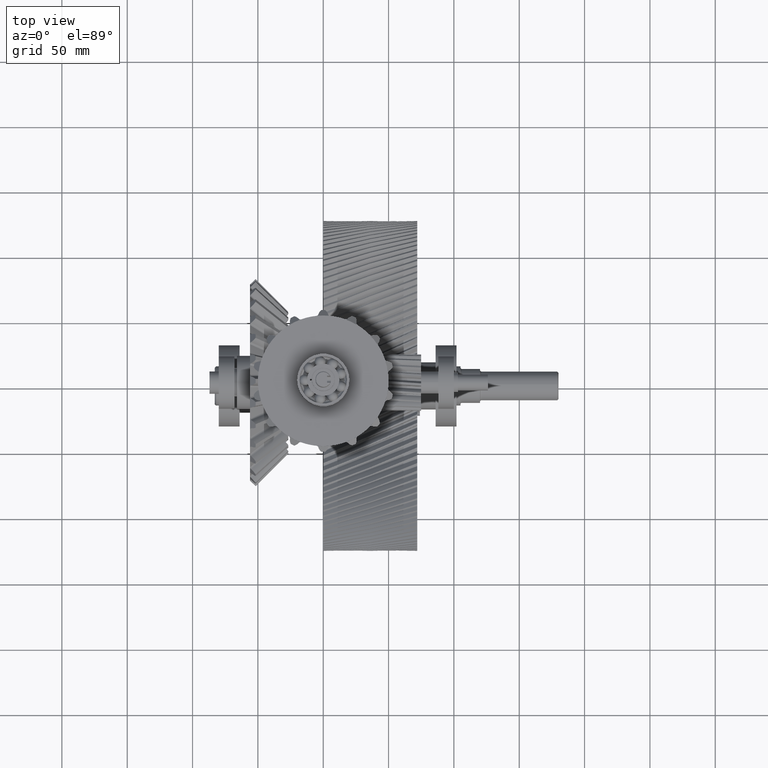
[diagram: clean part render]
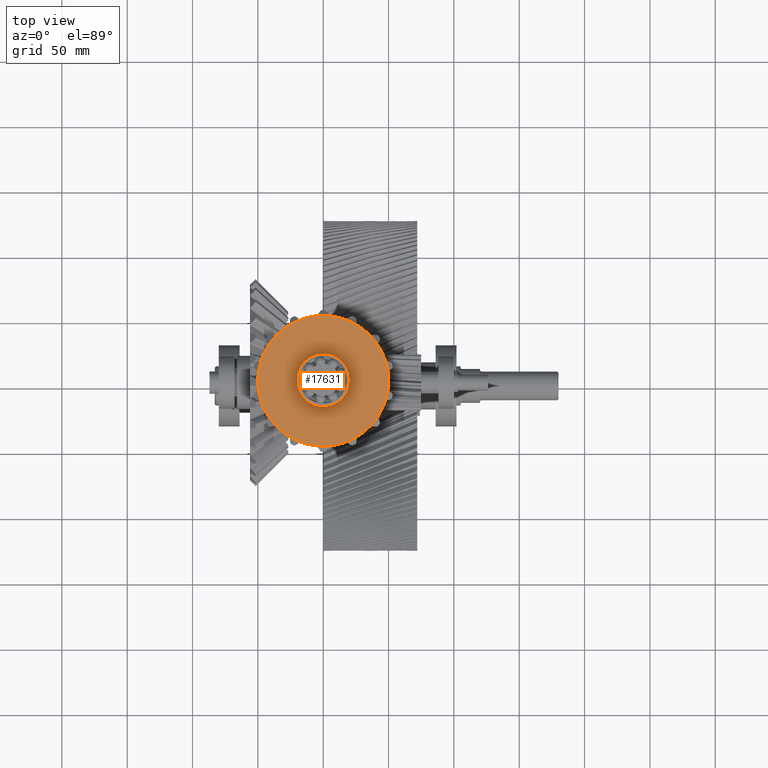
[diagram: same view with one face highlighted and labeled with its STEP entity id]
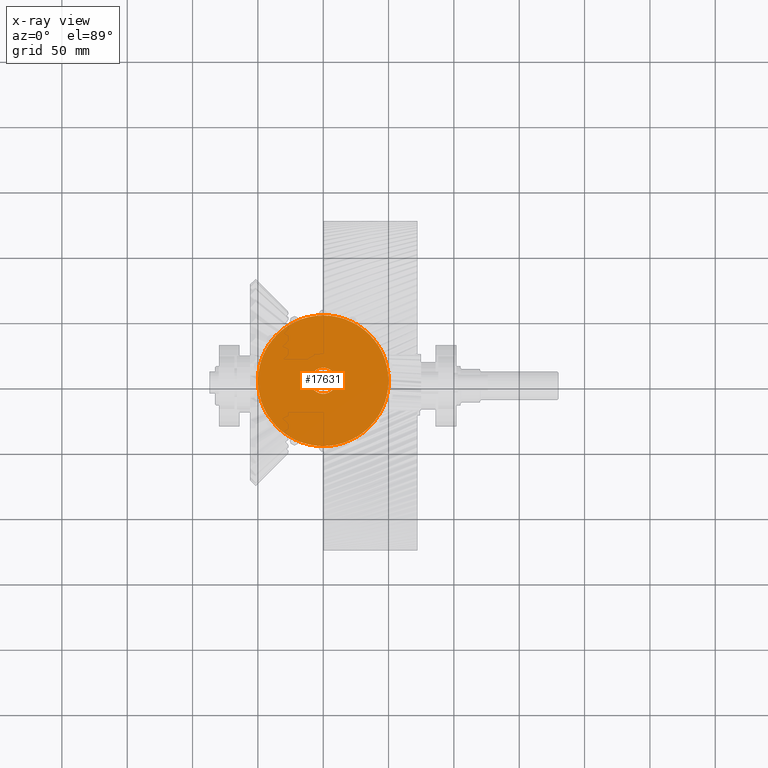
[diagram: x-ray of the same camera — body ghosted, the highlighted face saturated]
A machine part, top view. The second image highlights one B-rep face of the part: STEP entity #17631.
The next image is the same camera in x-ray: the body ghosted, the highlighted face saturated — about 0% of this face is hidden behind the body in this view.
In plain terms, the highlighted planar face has unit normal (0, 0, 1).
Its self-contained STEP definition (entity closure, byte-faithful):
#13673=CARTESIAN_POINT('',(-5.165752647156E0,8.422917568860E-9,
-4.973243411889E1));
#13695=CARTESIAN_POINT('',(-1.692391209906E1,4.552665799955E-9,
-4.704871094260E1));
#13697=CARTESIAN_POINT('',(0.E0,0.E0,0.E0));
#13698=DIRECTION('',(0.E0,-1.E0,0.E0));
#13699=DIRECTION('',(-3.384782445882E-1,0.E0,-9.409742174685E-1));
#13700=AXIS2_PLACEMENT_3D('',#13697,#13698,#13699);
#13702=CARTESIAN_POINT('',(1.692391206198E1,2.811611462120E-9,
-4.704871094657E1));
#13724=CARTESIAN_POINT('',(5.165752528390E0,1.794955789384E-8,
-4.973243417225E1));
#13726=CARTESIAN_POINT('',(3.566158851267E1,2.456199206855E-9,
-3.504641359418E1));
#13753=CARTESIAN_POINT('',(2.623227683151E1,4.545031632446E-9,
-4.256603874247E1));
#13778=CARTESIAN_POINT('',(4.210317678591E1,9.807817755672E-9,
2.696891745842E1));
#13798=CARTESIAN_POINT('',(4.733605002577E1,4.548835962739E-9,
1.610274417775E1));
#13800=CARTESIAN_POINT('',(0.E0,0.E0,0.E0));
#13801=DIRECTION('',(0.E0,-1.E0,0.E0));
#13802=DIRECTION('',(9.467210010592E-1,0.E0,3.220548806546E-1));
#13803=AXIS2_PLACEMENT_3D('',#13800,#13801,#13802);
#13805=CARTESIAN_POINT('',(2.623227684531E1,2.811609559899E-9,
4.256603872545E1));
#13834=CARTESIAN_POINT('',(3.566158851153E1,2.023245681972E-9,
3.504641359345E1));
#13836=CARTESIAN_POINT('',(0.E0,0.E0,0.E0));
#13837=DIRECTION('',(0.E0,-1.E0,0.E0));
#13838=DIRECTION('',(7.132317710003E-1,0.E0,7.009282708208E-1));
#13839=AXIS2_PLACEMENT_3D('',#13836,#13837,#13838);
#13841=CARTESIAN_POINT('',(5.165752506842E0,1.774754681931E-8,
4.973243417607E1));
#13862=CARTESIAN_POINT('',(1.692391209905E1,4.548842709865E-9,
4.704871094259E1));
#13864=CARTESIAN_POINT('',(0.E0,0.E0,0.E0));
#13865=DIRECTION('',(0.E0,-1.E0,0.E0));
#13866=DIRECTION('',(3.384782445875E-1,0.E0,9.409742174688E-1));
#13867=AXIS2_PLACEMENT_3D('',#13864,#13865,#13866);
#13869=CARTESIAN_POINT('',(-1.692391206692E1,2.811617605451E-9,
4.704871094532E1));
#13897=CARTESIAN_POINT('',(-5.165752737781E0,2.156790100107E-9,
4.973243408122E1));
#13899=CARTESIAN_POINT('',(0.E0,0.E0,0.E0));
#13900=DIRECTION('',(0.E0,-1.E0,0.E0));
#13901=DIRECTION('',(-1.033150533674E-1,0.E0,9.946486815694E-1));
#13902=AXIS2_PLACEMENT_3D('',#13899,#13900,#13901);
#13904=CARTESIAN_POINT('',(-3.566158851257E1,2.200562140048E-9,
3.504641359327E1));
#13929=CARTESIAN_POINT('',(-2.623227682315E1,4.548849423150E-9,
4.256603874886E1));
#13931=CARTESIAN_POINT('',(0.E0,0.E0,0.E0));
#13932=DIRECTION('',(0.E0,-1.E0,0.E0));
#13933=DIRECTION('',(-5.246455337568E-1,0.E0,8.513207761526E-1));
#13934=AXIS2_PLACEMENT_3D('',#13931,#13932,#13933);
#13936=CARTESIAN_POINT('',(-4.733605000787E1,2.811623390384E-9,
1.610274420457E1));
#13960=CARTESIAN_POINT('',(-4.210317680364E1,4.548854761808E-9,
2.696891738905E1));
#13962=CARTESIAN_POINT('',(0.E0,0.E0,0.E0));
#13963=DIRECTION('',(0.E0,-1.E0,0.E0));
#13964=DIRECTION('',(-8.420635341447E-1,0.E0,5.393783500139E-1));
#13965=AXIS2_PLACEMENT_3D('',#13962,#13963,#13964);
#13967=CARTESIAN_POINT('',(-4.963502625210E1,2.811622494943E-9,
-6.030271156362E0));
#13991=CARTESIAN_POINT('',(-4.963502625658E1,4.548856333208E-9,
6.030271188264E0));
#13993=CARTESIAN_POINT('',(0.E0,0.E0,0.E0));
#13994=DIRECTION('',(0.E0,-1.E0,0.E0));
#13995=DIRECTION('',(-9.927005243634E-1,0.E0,1.206054266134E-1));
#13996=AXIS2_PLACEMENT_3D('',#13993,#13994,#13995);
#13998=CARTESIAN_POINT('',(-4.210317681344E1,2.811623366033E-9,
-2.696891735835E1));
#14022=CARTESIAN_POINT('',(-4.733605002579E1,4.552669364441E-9,
-1.610274417772E1));
#14024=CARTESIAN_POINT('',(0.E0,0.E0,0.E0));
#14025=DIRECTION('',(0.E0,-1.E0,0.E0));
#14026=DIRECTION('',(-9.467210010597E-1,0.E0,-3.220548806530E-1));
#14027=AXIS2_PLACEMENT_3D('',#14024,#14025,#14026);
#14029=CARTESIAN_POINT('',(-2.623227684531E1,2.811619063584E-9,
-4.256603872545E1));
#14050=CARTESIAN_POINT('',(-3.566158861841E1,9.794304663730E-9,
-3.504641353447E1));
#14052=CARTESIAN_POINT('',(0.E0,0.E0,0.E0));
#14053=DIRECTION('',(0.E0,-1.E0,0.E0));
#14054=DIRECTION('',(-7.132317758778E-1,0.E0,-7.009282658576E-1));
#14055=AXIS2_PLACEMENT_3D('',#14052,#14053,#14054);
#14072=CARTESIAN_POINT('',(-2.510013038976E1,0.E0,-4.306323186821E1));
#14073=CARTESIAN_POINT('',(-2.514236407531E1,0.E0,-4.315792416652E1));
#14074=CARTESIAN_POINT('',(-2.518387253956E1,0.E0,-4.325293330060E1));
#14075=CARTESIAN_POINT('',(-2.522465455750E1,0.E0,-4.334825980566E1));
#14077=CARTESIAN_POINT('',(-2.623227684531E1,2.811619063584E-9,
-4.256603872545E1));
#14078=CARTESIAN_POINT('',(-2.617219142191E1,2.811619052546E-9,
-4.260306771476E1));
#14079=CARTESIAN_POINT('',(-2.605826080639E1,-1.312097433125E-9,
-4.268951249463E1));
#14080=CARTESIAN_POINT('',(-2.590590525075E1,3.748772116767E-10,
-4.286076857023E1));
#14081=CARTESIAN_POINT('',(-2.582164418216E1,0.E0,-4.300129508875E1));
#14082=CARTESIAN_POINT('',(-2.578436664829E1,0.E0,-4.307871666889E1));
#14084=DIRECTION('',(6.234898018587E-1,0.E0,-7.818314824680E-1));
#14085=VECTOR('',#14084,6.212335434591E-1);
#14086=CARTESIAN_POINT('',(-3.664841473818E1,0.E0,-3.423811506059E1));
#14087=LINE('',#14086,#14085);
#14088=CARTESIAN_POINT('',(-3.664841473818E1,0.E0,-3.423811506059E1));
#14089=CARTESIAN_POINT('',(-3.656455312035E1,0.E0,-3.417714339005E1));
#14090=CARTESIAN_POINT('',(-3.648116256586E1,0.E0,-3.411553410841E1));
#14091=CARTESIAN_POINT('',(-3.639824228032E1,0.E0,-3.405328829087E1));
#14093=CARTESIAN_POINT('',(-3.639824228032E1,0.E0,-3.405328829087E1));
#14094=CARTESIAN_POINT('',(-3.688567399369E1,0.E0,-3.360844902493E1));
#14095=CARTESIAN_POINT('',(-3.782174339948E1,-8.908495936982E-10,
-3.268353727827E1));
#14096=CARTESIAN_POINT('',(-3.868114361803E1,1.781687933774E-9,
-3.168915364848E1));
#14097=CARTESIAN_POINT('',(-3.909157388079E1,1.781688009166E-9,
-3.117449040807E1));
#14099=CARTESIAN_POINT('',(-3.909157388079E1,1.781688009166E-9,
-3.117449040807E1));
#14100=CARTESIAN_POINT('',(-3.950218437431E1,1.781688084592E-9,
-3.065960113496E1));
#14101=CARTESIAN_POINT('',(-4.028054766740E1,-8.908482498520E-10,
-2.960022086787E1));
#14102=CARTESIAN_POINT('',(-4.097379197312E1,0.E0,-2.848203842018E1));
#14103=CARTESIAN_POINT('',(-4.129887212293E1,0.E0,-2.790809283868E1));
#14105=CARTESIAN_POINT('',(-4.129887212293E1,0.E0,-2.790809283868E1));
#14106=CARTESIAN_POINT('',(-4.137800880725E1,0.E0,-2.797508314207E1));
#14107=CARTESIAN_POINT('',(-4.145662955964E1,0.E0,-2.804267356638E1));
#14108=CARTESIAN_POINT('',(-4.153473350862E1,0.E0,-2.811086512528E1));
#14110=CARTESIAN_POINT('',(-4.210317681344E1,2.811623366033E-9,
-2.696891735835E1));
#14111=CARTESIAN_POINT('',(-4.206510799388E1,2.811623359040E-9,
-2.702834941310E1));
#14112=CARTESIAN_POINT('',(-4.199996704051E1,-1.312095302306E-9,
-2.715566611001E1));
#14113=CARTESIAN_POINT('',(-4.193700465446E1,3.748808671334E-10,
-2.737606710073E1));
#14114=CARTESIAN_POINT('',(-4.192206022618E1,0.E0,-2.753923662654E1));
#14115=CARTESIAN_POINT('',(-4.192206629338E1,0.E0,-2.762516517572E1));
#14117=DIRECTION('',(2.225209339563E-1,0.E0,-9.749279121818E-1));
#14118=VECTOR('',#14117,6.212335588395E-1);
#14119=CARTESIAN_POINT('',(-4.787444211990E1,0.E0,-1.494632454592E1));
#14120=LINE('',#14119,#14118);
#14121=CARTESIAN_POINT('',(-4.787444211990E1,0.E0,-1.494632454592E1));
#14122=CARTESIAN_POINT('',(-4.777243079664E1,0.E0,-1.492777716125E1));
#14123=CARTESIAN_POINT('',(-4.767056723767E1,0.E0,-1.490845092211E1));
#14124=CARTESIAN_POINT('',(-4.756885119383E1,0.E0,-1.488834714189E1));
#14126=CARTESIAN_POINT('',(-4.756885119383E1,0.E0,-1.488834714189E1));
#14127=CARTESIAN_POINT('',(-4.781500347453E1,0.E0,-1.427607210342E1));
#14128=CARTESIAN_POINT('',(-4.825706871817E1,-8.908485056203E-10,
-1.303661005969E1));
#14129=CARTESIAN_POINT('',(-4.859991465004E1,1.781691597078E-9,
-1.176782165341E1));
#14130=CARTESIAN_POINT('',(-4.874639553132E1,1.781691623986E-9,
-1.112604706519E1));
#14132=CARTESIAN_POINT('',(-4.874639553132E1,1.781691623986E-9,
-1.112604706519E1));
#14133=CARTESIAN_POINT('',(-4.889294070959E1,1.781691650905E-9,
-1.048399068806E1));
#14134=CARTESIAN_POINT('',(-4.913457394222E1,-8.908482373378E-10,
-9.191802834119E0));
#14135=CARTESIAN_POINT('',(-4.927400429405E1,0.E0,-7.883567859924E0));
#14136=CARTESIAN_POINT('',(-4.931786573473E1,0.E0,-7.225413752141E0));
#14138=CARTESIAN_POINT('',(-4.931786573473E1,0.E0,-7.225413752141E0));
#14139=CARTESIAN_POINT('',(-4.941823142693E1,0.E0,-7.251433809463E0));
#14140=CARTESIAN_POINT('',(-4.951839266323E1,0.E0,-7.278218411508E0));
#14141=CARTESIAN_POINT('',(-4.961834909828E1,0.E0,-7.305768849712E0));
#14143=CARTESIAN_POINT('',(-4.963502625210E1,2.811622494943E-9,
-6.030271156362E0));
#14144=CARTESIAN_POINT('',(-4.962651403297E1,2.811622493379E-9,
-6.100335029223E0));
#14145=CARTESIAN_POINT('',(-4.962306470647E1,-1.312092645530E-9,
-6.243307009921E0));
#14146=CARTESIAN_POINT('',(-4.966196596275E1,3.748812703838E-10,
-6.469199796494E0));
#14147=CARTESIAN_POINT('',(-4.971929810208E1,0.E0,-6.622694603859E0));
#14148=CARTESIAN_POINT('',(-4.975658656866E1,0.E0,-6.700110919085E0));
#14150=DIRECTION('',(-2.225209339563E-1,0.E0,-9.749279121818E-1));
#14151=VECTOR('',#14150,6.212335588136E-1);
#14152=CARTESIAN_POINT('',(-4.961834909828E1,0.E0,7.305768849712E0));
#14153=LINE('',#14152,#14151);
#14154=CARTESIAN_POINT('',(-4.961834909828E1,0.E0,7.305768849712E0));
#14155=CARTESIAN_POINT('',(-4.951839266323E1,0.E0,7.278218411508E0));
#14156=CARTESIAN_POINT('',(-4.941823142693E1,0.E0,7.251433809463E0));
#14157=CARTESIAN_POINT('',(-4.931786573473E1,0.E0,7.225413752141E0));
#14159=CARTESIAN_POINT('',(-4.931786573473E1,0.E0,7.225413752141E0));
#14160=CARTESIAN_POINT('',(-4.927398492123E1,0.E0,7.883858554975E0));
#14161=CARTESIAN_POINT('',(-4.913448893123E1,-8.908447508210E-10,
9.192382780296E0));
#14162=CARTESIAN_POINT('',(-4.889287596703E1,1.781684677828E-9,
1.048427425678E1));
#14163=CARTESIAN_POINT('',(-4.874639569609E1,1.781684650921E-9,
1.112604634168E1));
#14165=CARTESIAN_POINT('',(-4.874639569609E1,1.781684650921E-9,
1.112604634168E1));
#14166=CARTESIAN_POINT('',(-4.859985217385E1,1.781684624002E-9,
1.176809546328E1));
#14167=CARTESIAN_POINT('',(-4.825689970275E1,-8.90844427E-10,1.303715021646E1));
#14168=CARTESIAN_POINT('',(-4.781489853806E1,0.E0,1.427633312064E1));
#14169=CARTESIAN_POINT('',(-4.756885119383E1,0.E0,1.488834714189E1));
#14171=CARTESIAN_POINT('',(-4.756885119383E1,0.E0,1.488834714189E1));
#14172=CARTESIAN_POINT('',(-4.767056723767E1,0.E0,1.490845092211E1));
#14173=CARTESIAN_POINT('',(-4.777243079664E1,0.E0,1.492777716125E1));
#14174=CARTESIAN_POINT('',(-4.787444211990E1,0.E0,1.494632454592E1));
#14176=CARTESIAN_POINT('',(-4.733605000787E1,2.811623390384E-9,
1.610274420457E1));
#14177=CARTESIAN_POINT('',(-4.735878033858E1,2.811623394559E-9,
1.603592552289E1));
#14178=CARTESIAN_POINT('',(-4.741770582036E1,-1.312093525975E-9,
1.590561561262E1));
#14179=CARTESIAN_POINT('',(-4.755076584807E1,3.748805696536E-10,
1.571897186696E1));
#14180=CARTESIAN_POINT('',(-4.766901922169E1,0.E0,1.560555330713E1));
#14181=CARTESIAN_POINT('',(-4.773620464953E1,0.E0,1.555198247655E1));
#14183=DIRECTION('',(-6.234898018587E-1,0.E0,-7.818314824680E-1));
#14184=VECTOR('',#14183,6.212335588136E-1);
#14185=CARTESIAN_POINT('',(-4.153473350862E1,0.E0,2.811086512528E1));
#14186=LINE('',#14185,#14184);
#14187=CARTESIAN_POINT('',(-4.153473350862E1,0.E0,2.811086512528E1));
#14188=CARTESIAN_POINT('',(-4.145662955964E1,0.E0,2.804267356638E1));
#14189=CARTESIAN_POINT('',(-4.137800880725E1,0.E0,2.797508314207E1));
#14190=CARTESIAN_POINT('',(-4.129887212293E1,0.E0,2.790809283868E1));
#14192=CARTESIAN_POINT('',(-4.129887212293E1,0.E0,2.790809283868E1));
#14193=CARTESIAN_POINT('',(-4.097364838870E1,0.E0,2.848229192579E1));
#14194=CARTESIAN_POINT('',(-4.028021948872E1,-8.908487437134E-10,
2.960070643425E1));
#14195=CARTESIAN_POINT('',(-3.950200299607E1,1.781689072160E-9,
3.065982854474E1));
#14196=CARTESIAN_POINT('',(-3.909157436754E1,1.781688996768E-9,
3.117448979683E1));
#14198=CARTESIAN_POINT('',(-3.909157436754E1,1.781688996768E-9,
3.117448979683E1));
#14199=CARTESIAN_POINT('',(-3.868096852123E1,1.781688921344E-9,
3.168937324251E1));
#14200=CARTESIAN_POINT('',(-3.782135681959E1,-8.908500875703E-10,
3.268395054169E1));
#14201=CARTESIAN_POINT('',(-3.688546620104E1,0.E0,3.360863866038E1));
#14202=CARTESIAN_POINT('',(-3.639824228032E1,0.E0,3.405328829087E1));
#14204=CARTESIAN_POINT('',(-3.639824228032E1,0.E0,3.405328829087E1));
#14205=CARTESIAN_POINT('',(-3.648116256586E1,0.E0,3.411553410841E1));
#14206=CARTESIAN_POINT('',(-3.656455312035E1,0.E0,3.417714339005E1));
#14207=CARTESIAN_POINT('',(-3.664841473818E1,0.E0,3.423811506059E1));
#14209=CARTESIAN_POINT('',(-3.566158851257E1,2.200562140048E-9,
3.504641359327E1));
#14210=CARTESIAN_POINT('',(-3.571105938232E1,2.200562149136E-9,
3.499607435244E1));
#14211=CARTESIAN_POINT('',(-3.582068874956E1,-1.026934920722E-9,
3.490423598914E1));
#14212=CARTESIAN_POINT('',(-3.602155338488E1,2.934045362865E-10,
3.479380836865E1));
#14213=CARTESIAN_POINT('',(-3.617730646251E1,0.E0,3.474292999440E1));
#14214=CARTESIAN_POINT('',(-3.626108195436E1,0.E0,3.472381500897E1));
#14216=DIRECTION('',(-9.009688679024E-1,0.E0,-4.338837391176E-1));
#14217=VECTOR('',#14216,6.212335588136E-1);
#14218=CARTESIAN_POINT('',(-2.522465455750E1,0.E0,4.334825980566E1));
#14219=LINE('',#14218,#14217);
#14220=CARTESIAN_POINT('',(-2.522465455750E1,0.E0,4.334825980566E1));
#14221=CARTESIAN_POINT('',(-2.518387253956E1,0.E0,4.325293330060E1));
#14222=CARTESIAN_POINT('',(-2.514236407531E1,0.E0,4.315792416652E1));
#14223=CARTESIAN_POINT('',(-2.510013038976E1,0.E0,4.306323186821E1));
#14225=CARTESIAN_POINT('',(-2.510013038976E1,0.E0,4.306323186821E1));
#14226=CARTESIAN_POINT('',(-2.455797822071E1,0.E0,4.343945812318E1));
#14227=CARTESIAN_POINT('',(-2.344795822191E1,-8.908521032303E-10,
4.414624740923E1));
#14228=CARTESIAN_POINT('',(-2.228727383435E1,1.781685645666E-9,
4.476282778860E1));
#14229=CARTESIAN_POINT('',(-2.169418720038E1,1.781685536721E-9,
4.504844327935E1));
#14231=CARTESIAN_POINT('',(-2.169418720038E1,1.781685536721E-9,
4.504844327935E1));
#14232=CARTESIAN_POINT('',(-2.110084476525E1,1.781685427729E-9,
4.533418193637E1));
#14233=CARTESIAN_POINT('',(-1.989483028016E1,-8.908520052794E-10,
4.585729367084E1));
#14234=CARTESIAN_POINT('',(-1.865041498844E1,0.E0,4.628434109847E1));
#14235=CARTESIAN_POINT('',(-1.801851508805E1,0.E0,4.647355805768E1));
#14237=CARTESIAN_POINT('',(-1.801851508805E1,0.E0,4.647355805768E1));
#14238=CARTESIAN_POINT('',(-1.806621623577E1,0.E0,4.656561736497E1));
#14239=CARTESIAN_POINT('',(-1.811461726377E1,0.E0,4.665730721529E1));
#14240=CARTESIAN_POINT('',(-1.816371935425E1,0.E0,4.674862698459E1));
#14242=CARTESIAN_POINT('',(-1.692391206692E1,2.811617605451E-9,
4.704871094532E1));
#14243=CARTESIAN_POINT('',(-1.699032514526E1,2.811617617651E-9,
4.702482146687E1));
#14244=CARTESIAN_POINT('',(-1.712894497255E1,-1.312099381359E-9,
4.698964436352E1));
#14245=CARTESIAN_POINT('',(-1.735783049922E1,3.748763418764E-10,
4.697730441024E1));
#14246=CARTESIAN_POINT('',(-1.752023447249E1,0.E0,4.699904330525E1));
#14247=CARTESIAN_POINT('',(-1.760400726347E1,0.E0,4.701817012135E1));
#14249=DIRECTION('',(-1.E0,0.E0,-2.287522089982E-14));
#14250=VECTOR('',#14249,6.212335512489E-1);
#14251=CARTESIAN_POINT('',(-3.918523411186E0,0.E0,5.E1));
#14252=LINE('',#14251,#14250);
#14253=CARTESIAN_POINT('',(-3.918523411186E0,0.E0,5.E1));
#14254=CARTESIAN_POINT('',(-3.923140703102E0,0.E0,4.989641913223E1));
#14255=CARTESIAN_POINT('',(-3.926965787405E0,0.E0,4.979280901258E1));
#14256=CARTESIAN_POINT('',(-3.93E0,0.E0,4.968916969037E1));
#14258=CARTESIAN_POINT('',(-3.93E0,-1.041750588788E-14,4.968916969037E1));
#14259=CARTESIAN_POINT('',(-3.278296566028E0,-1.053721791278E-14,
4.979290726145E1));
#14260=CARTESIAN_POINT('',(-1.971536084719E0,-8.908569496968E-10,
4.994808276417E1));
#14261=CARTESIAN_POINT('',(-6.582739601973E-1,1.781683251467E-9,
4.999999998646E1));
#14262=CARTESIAN_POINT('',(-3.636412846703E-7,1.781683130548E-9,
5.000000000546E1));
#14264=CARTESIAN_POINT('',(-3.636412846703E-7,1.781683130548E-9,
5.000000000546E1));
#14265=CARTESIAN_POINT('',(6.585527293651E-1,1.781683009577E-9,
5.000000000546E1));
#14266=CARTESIAN_POINT('',(1.972096181035E0,-8.908593396146E-10,
4.994803850903E1));
#14267=CARTESIAN_POINT('',(3.278572342428E0,0.E0,4.979286336360E1));
#14268=CARTESIAN_POINT('',(3.93E0,0.E0,4.968916969037E1));
#14270=CARTESIAN_POINT('',(3.93E0,-1.253018487396E-14,4.968916969037E1));
#14271=CARTESIAN_POINT('',(3.926965787405E0,-1.252962751656E-14,
4.979280901258E1));
#14272=CARTESIAN_POINT('',(3.923140703102E0,-1.252892488318E-14,
4.989641913223E1));
#14273=CARTESIAN_POINT('',(3.918523411186E0,-1.252807672842E-14,5.E1));
#14275=CARTESIAN_POINT('',(5.165752506842E0,1.774754681931E-8,
4.973243417607E1));
#14276=CARTESIAN_POINT('',(5.095551486289E0,1.774754683220E-8,
4.973972601181E1));
#14277=CARTESIAN_POINT('',(4.955396429634E0,-8.282205616601E-9,
4.976817757848E1));
#14278=CARTESIAN_POINT('',(4.743823666682E0,2.366329999629E-9,
4.985636923214E1));
#14279=CARTESIAN_POINT('',(4.606934883175E0,-1.237365298996E-14,
4.994641970790E1));
#14280=CARTESIAN_POINT('',(4.539757021448E0,-1.236131302451E-14,5.E1));
#14282=DIRECTION('',(-9.009688679024E-1,0.E0,4.338837391176E-1));
#14283=VECTOR('',#14282,6.212335588136E-1);
#14284=CARTESIAN_POINT('',(1.816371935425E1,-1.198578285849E-14,
4.674862698459E1));
#14285=LINE('',#14284,#14283);
#14286=CARTESIAN_POINT('',(1.816371935425E1,-1.970386145427E-14,
4.674862698459E1));
#14287=CARTESIAN_POINT('',(1.811461726377E1,-1.969484184447E-14,
4.665730721529E1));
#14288=CARTESIAN_POINT('',(1.806621623577E1,-1.968595101351E-14,
4.656561736497E1));
#14289=CARTESIAN_POINT('',(1.801851508805E1,-1.967718874422E-14,
4.647355805768E1));
#14291=CARTESIAN_POINT('',(1.801851508805E1,-1.531413411837E-14,
4.647355805768E1));
#14292=CARTESIAN_POINT('',(1.865068975515E1,-1.543025888547E-14,
4.628425882196E1));
#14293=CARTESIAN_POINT('',(1.989536839571E1,-8.908594919971E-10,
4.585708498385E1));
#14294=CARTESIAN_POINT('',(2.110110273323E1,1.781677170446E-9,
4.533405769095E1));
#14295=CARTESIAN_POINT('',(2.169418658193E1,1.781677061502E-9,
4.504844358368E1));
#14297=CARTESIAN_POINT('',(2.169418658193E1,1.781677061502E-9,
4.504844358368E1));
#14298=CARTESIAN_POINT('',(2.228752148478E1,1.781676952511E-9,
4.476270855401E1));
#14299=CARTESIAN_POINT('',(2.344843694342E1,-8.908617625111E-10,
4.414596842553E1));
#14300=CARTESIAN_POINT('',(2.455820443905E1,-1.327972099281E-14,
4.343930113907E1));
#14301=CARTESIAN_POINT('',(2.510013038976E1,-1.337926788719E-14,
4.306323186821E1));
#14303=CARTESIAN_POINT('',(2.510013038976E1,-1.949778149940E-14,
4.306323186821E1));
#14304=CARTESIAN_POINT('',(2.514236407531E1,-1.950553944535E-14,
4.315792416652E1));
#14305=CARTESIAN_POINT('',(2.518387253956E1,-1.951316417471E-14,
4.325293330060E1));
#14306=CARTESIAN_POINT('',(2.522465455750E1,-1.952065546246E-14,
4.334825980566E1));
#14308=CARTESIAN_POINT('',(2.623227684531E1,2.811609559899E-9,
4.256603872545E1));
#14309=CARTESIAN_POINT('',(2.617219142191E1,2.811609570936E-9,
4.260306771476E1));
#14310=CARTESIAN_POINT('',(2.605826080639E1,-1.312107157625E-9,
4.268951249463E1));
#14311=CARTESIAN_POINT('',(2.590590525075E1,3.748680230327E-10,
4.286076857023E1));
#14312=CARTESIAN_POINT('',(2.582164418216E1,-1.561912472015E-14,
4.300129508875E1));
#14313=CARTESIAN_POINT('',(2.578436664829E1,-1.561227717443E-14,
4.307871666889E1));
#14315=DIRECTION('',(-6.234898018587E-1,0.E0,7.818314824680E-1));
#14316=VECTOR('',#14315,6.212335506324E-1);
#14317=CARTESIAN_POINT('',(3.664841473818E1,-1.677123228089E-14,
3.423811506059E1));
#14318=LINE('',#14317,#14316);
#14319=CARTESIAN_POINT('',(3.664841473818E1,-1.672802252751E-14,
3.423811506059E1));
#14320=CARTESIAN_POINT('',(3.656455312035E1,-1.671261790700E-14,
3.417714339005E1));
#14321=CARTESIAN_POINT('',(3.648116256586E1,-1.669729981657E-14,
3.411553410841E1));
#14322=CARTESIAN_POINT('',(3.639824228032E1,-1.668206811029E-14,
3.405328829087E1));
#14324=CARTESIAN_POINT('',(3.639824228032E1,-1.762376854636E-14,
3.405328829087E1));
#14325=CARTESIAN_POINT('',(3.688567818780E1,-1.771330611277E-14,
3.360844519731E1));
#14326=CARTESIAN_POINT('',(3.782175139233E1,-8.908626044894E-10,
3.268352873490E1));
#14327=CARTESIAN_POINT('',(3.868114712694E1,1.781672513752E-9,
3.168914924040E1));
#14328=CARTESIAN_POINT('',(3.909157395613E1,1.781672438360E-9,
3.117449030554E1));
#14330=CARTESIAN_POINT('',(3.909157395613E1,1.781672438360E-9,
3.117449030554E1));
#14331=CARTESIAN_POINT('',(3.950217426395E1,1.781672362936E-9,
3.065961380491E1));
#14332=CARTESIAN_POINT('',(4.028052960712E1,-8.908621719740E-10,
2.960024759850E1));
#14333=CARTESIAN_POINT('',(4.097378400564E1,-2.023259570828E-14,
2.848205248716E1));
#14334=CARTESIAN_POINT('',(4.129887212293E1,-2.029231145437E-14,
2.790809283868E1));
#14336=CARTESIAN_POINT('',(4.129887212293E1,-1.901646859299E-14,
2.790809283868E1));
#14337=CARTESIAN_POINT('',(4.137800880725E1,-1.903100528596E-14,
2.797508314207E1));
#14338=CARTESIAN_POINT('',(4.145662955964E1,-1.904544720689E-14,
2.804267356638E1));
#14339=CARTESIAN_POINT('',(4.153473350862E1,-1.905979419572E-14,
2.811086512528E1));
#14341=CARTESIAN_POINT('',(4.210317678591E1,9.807817755672E-9,
2.696891745842E1));
#14342=CARTESIAN_POINT('',(4.206510803689E1,9.807817762665E-9,
2.702834939249E1));
#14343=CARTESIAN_POINT('',(4.199996709147E1,-4.577008486940E-9,
2.715566619174E1));
#14344=CARTESIAN_POINT('',(4.193700466539E1,1.307692814981E-9,
2.737606711153E1));
#14345=CARTESIAN_POINT('',(4.192206022313E1,-1.769498454581E-14,
2.753923663788E1));
#14346=CARTESIAN_POINT('',(4.192206628764E1,-1.769498565981E-14,
2.762516518291E1));
#14348=DIRECTION('',(-2.225209339563E-1,0.E0,9.749279121818E-1));
#14349=VECTOR('',#14348,6.212335588136E-1);
#14350=CARTESIAN_POINT('',(4.787444211990E1,-1.909818194651E-14,
1.494632454592E1));
#14351=LINE('',#14350,#14349);
#14352=CARTESIAN_POINT('',(4.787444211990E1,-1.750999983854E-14,
1.494632454592E1));
#14353=CARTESIAN_POINT('',(4.777243079664E1,-1.749126128134E-14,
1.492777716125E1));
#14354=CARTESIAN_POINT('',(4.767056723767E1,-1.747254986711E-14,
1.490845092211E1));
#14355=CARTESIAN_POINT('',(4.756885119383E1,-1.745386555007E-14,
1.488834714189E1));
#14357=CARTESIAN_POINT('',(4.756885119383E1,-1.949198637187E-14,
1.488834714189E1));
#14358=CARTESIAN_POINT('',(4.781500558681E1,-1.953720270692E-14,
1.427606684937E1));
#14359=CARTESIAN_POINT('',(4.825707218908E1,-8.908658121582E-10,
1.303659896926E1));
#14360=CARTESIAN_POINT('',(4.859991589800E1,1.781673089631E-9,
1.176781616713E1));
#14361=CARTESIAN_POINT('',(4.874639555063E1,1.781673062724E-9,
1.112604696194E1));
#14363=CARTESIAN_POINT('',(4.874639555063E1,1.781673062724E-9,
1.112604696194E1));
#14364=CARTESIAN_POINT('',(4.889293710385E1,1.781673035806E-9,
1.048400646722E1));
#14365=CARTESIAN_POINT('',(4.913456926548E1,-8.908654883202E-10,
9.191834768874E0));
#14366=CARTESIAN_POINT('',(4.927400322011E1,-2.077525983367E-14,
7.883583974729E0));
#14367=CARTESIAN_POINT('',(4.931786573473E1,-2.078331698079E-14,
7.225413752141E0));
#14369=CARTESIAN_POINT('',(4.931786573473E1,-1.828700343636E-14,
7.225413752141E0));
#14370=CARTESIAN_POINT('',(4.941823142693E1,-1.830543970601E-14,
7.251433809463E0));
#14371=CARTESIAN_POINT('',(4.951839266323E1,-1.832383841897E-14,
7.278218411508E0));
#14372=CARTESIAN_POINT('',(4.961834909828E1,-1.834219951179E-14,
7.305768849712E0));
#14374=CARTESIAN_POINT('',(4.963502625210E1,2.811604056123E-9,
6.030271156366E0));
#14375=CARTESIAN_POINT('',(4.962651403297E1,2.811604057687E-9,
6.100335029221E0));
#14376=CARTESIAN_POINT('',(4.962306470647E1,-1.312110738247E-9,
6.243307009922E0));
#14377=CARTESIAN_POINT('',(4.966196596275E1,3.748628485436E-10,
6.469199796494E0));
#14378=CARTESIAN_POINT('',(4.971929810208E1,-1.861591746114E-14,
6.622694603859E0));
#14379=CARTESIAN_POINT('',(4.975658656866E1,-1.862276701511E-14,
6.700110919085E0));
#14381=DIRECTION('',(2.225209339563E-1,0.E0,9.749279121818E-1));
#14382=VECTOR('',#14381,6.212335587878E-1);
#14383=CARTESIAN_POINT('',(4.961834909828E1,-2.045143163693E-14,
-7.305768849712E0));
#14384=LINE('',#14383,#14382);
#14385=CARTESIAN_POINT('',(4.961834909828E1,-2.189491319059E-14,
-7.305768849712E0));
#14386=CARTESIAN_POINT('',(4.951839266323E1,-2.187655209777E-14,
-7.278218411508E0));
#14387=CARTESIAN_POINT('',(4.941823142693E1,-2.185815338481E-14,
-7.251433809463E0));
#14388=CARTESIAN_POINT('',(4.931786573473E1,-2.183971711516E-14,
-7.225413752141E0));
#14390=CARTESIAN_POINT('',(4.931786573473E1,-1.959907908785E-14,
-7.225413752141E0));
#14391=CARTESIAN_POINT('',(4.927398454413E1,-1.959101851013E-14,
-7.883864213545E0));
#14392=CARTESIAN_POINT('',(4.913448724673E1,-8.908642676342E-10,
-9.192394276167E0));
#14393=CARTESIAN_POINT('',(4.889287470879E1,1.781669410237E-9,
-1.048427975245E1));
#14394=CARTESIAN_POINT('',(4.874639567102E1,1.781669437144E-9,
-1.112604643448E1));
#14396=CARTESIAN_POINT('',(4.874639567102E1,1.781669437144E-9,
-1.112604643448E1));
#14397=CARTESIAN_POINT('',(4.859985578034E1,1.781669464062E-9,
-1.176807964519E1));
#14398=CARTESIAN_POINT('',(4.825690937530E1,-8.908639993384E-10,
-1.303711931761E1));
#14399=CARTESIAN_POINT('',(4.781490457777E1,-1.953718415247E-14,
-1.427631809756E1));
#14400=CARTESIAN_POINT('',(4.756885119383E1,-1.949198637187E-14,
-1.488834714189E1));
#14402=CARTESIAN_POINT('',(4.756885119383E1,-2.100657922888E-14,
-1.488834714189E1));
#14403=CARTESIAN_POINT('',(4.767056723767E1,-2.102526354591E-14,
-1.490845092211E1));
#14404=CARTESIAN_POINT('',(4.777243079664E1,-2.104397496014E-14,
-1.492777716125E1));
#14405=CARTESIAN_POINT('',(4.787444211990E1,-2.106271351734E-14,
-1.494632454592E1));
#14407=CARTESIAN_POINT('',(4.733605000576E1,2.811605159083E-9,
-1.610274420921E1));
#14408=CARTESIAN_POINT('',(4.735878033891E1,2.811605154908E-9,
-1.603592552033E1));
#14409=CARTESIAN_POINT('',(4.741770582020E1,-1.312110881145E-9,
-1.590561561382E1));
#14410=CARTESIAN_POINT('',(4.755076584811E1,3.748641333705E-10,
-1.571897186662E1));
#14411=CARTESIAN_POINT('',(4.766901922169E1,-1.996700834919E-14,
-1.560555330713E1));
#14412=CARTESIAN_POINT('',(4.773620464953E1,-1.997934970446E-14,
-1.555198247655E1));
#14414=CARTESIAN_POINT('',(0.E0,0.E0,0.E0));
#14415=DIRECTION('',(0.E0,-1.E0,0.E0));
#14416=DIRECTION('',(8.420635320731E-1,0.E0,-5.393783532481E-1));
#14417=AXIS2_PLACEMENT_3D('',#14414,#14415,#14416);
#14419=DIRECTION('',(6.234898018587E-1,0.E0,7.818314824680E-1));
#14420=VECTOR('',#14419,6.212335462663E-1);
#14421=CARTESIAN_POINT('',(4.153473350862E1,-1.691064851401E-14,
-2.811086512528E1));
#14422=LINE('',#14421,#14420);
#14423=CARTESIAN_POINT('',(4.153473350862E1,-2.261250787452E-14,
-2.811086512528E1));
#14424=CARTESIAN_POINT('',(4.145662955964E1,-2.259816088569E-14,
-2.804267356638E1));
#14425=CARTESIAN_POINT('',(4.137800880725E1,-2.258371896476E-14,
-2.797508314207E1));
#14426=CARTESIAN_POINT('',(4.129887212293E1,-2.256918227179E-14,
-2.790809283868E1));
#14428=CARTESIAN_POINT('',(4.129887212293E1,-1.910807356144E-14,
-2.790809283868E1));
#14429=CARTESIAN_POINT('',(4.097364564262E1,-1.904833239931E-14,
-2.848229677413E1));
#14430=CARTESIAN_POINT('',(4.028021327112E1,-8.908639762094E-10,
-2.960071563314E1));
#14431=CARTESIAN_POINT('',(3.950199951249E1,1.781674787318E-9,
-3.065983291627E1));
#14432=CARTESIAN_POINT('',(3.909157440122E1,1.781674862709E-9,
-3.117448975785E1));
#14434=CARTESIAN_POINT('',(3.909157440122E1,1.781674862709E-9,
-3.117448975785E1));
#14435=CARTESIAN_POINT('',(3.868097854636E1,1.781674938132E-9,
-3.168936067465E1));
#14436=CARTESIAN_POINT('',(3.782137902061E1,-8.908638165956E-10,
-3.268392680710E1));
#14437=CARTESIAN_POINT('',(3.688547808871E1,-1.771326935637E-14,
-3.360862781147E1));
#14438=CARTESIAN_POINT('',(3.639824228032E1,-1.762376854636E-14,
-3.405328829087E1));
#14440=CARTESIAN_POINT('',(3.639824228032E1,-2.023478178909E-14,
-3.405328829087E1));
#14441=CARTESIAN_POINT('',(3.648116256586E1,-2.025001349537E-14,
-3.411553410841E1));
#14442=CARTESIAN_POINT('',(3.656455312035E1,-2.026533158580E-14,
-3.417714339005E1));
#14443=CARTESIAN_POINT('',(3.664841473818E1,-2.028073620631E-14,
-3.423811506059E1));
#14445=CARTESIAN_POINT('',(3.566158851267E1,2.456199206855E-9,
-3.504641359418E1));
#14446=CARTESIAN_POINT('',(3.571105938297E1,2.456199197768E-9,
-3.499607435259E1));
#14447=CARTESIAN_POINT('',(3.582068875200E1,-1.146251264943E-9,
-3.490423599171E1));
#14448=CARTESIAN_POINT('',(3.602155338529E1,3.274771954931E-10,
-3.479380836946E1));
#14449=CARTESIAN_POINT('',(3.617730646252E1,-1.505009915360E-14,
-3.474292999492E1));
#14450=CARTESIAN_POINT('',(3.626108195410E1,-1.506548795350E-14,
-3.472381500930E1));
#14452=CARTESIAN_POINT('',(0.E0,0.E0,0.E0));
#14453=DIRECTION('',(0.E0,-1.E0,0.E0));
#14454=DIRECTION('',(5.246455342913E-1,0.E0,-8.513207758232E-1));
#14455=AXIS2_PLACEMENT_3D('',#14452,#14453,#14454);
#14457=DIRECTION('',(9.009688679024E-1,0.E0,4.338837391176E-1));
#14458=VECTOR('',#14457,6.212335587878E-1);
#14459=CARTESIAN_POINT('',(2.522465455750E1,-1.434379008439E-14,
-4.334825980566E1));
#14460=LINE('',#14459,#14458);
#14461=CARTESIAN_POINT('',(2.522465455750E1,-1.596794178366E-14,
-4.334825980566E1));
#14462=CARTESIAN_POINT('',(2.518387253956E1,-1.596045049591E-14,
-4.325293330060E1));
#14463=CARTESIAN_POINT('',(2.514236407531E1,-1.595282576655E-14,
-4.315792416652E1));
#14464=CARTESIAN_POINT('',(2.510013038976E1,-1.594506782060E-14,
-4.306323186821E1));
#14466=CARTESIAN_POINT('',(2.510013038976E1,-1.456350578012E-14,
-4.306323186821E1));
#14467=CARTESIAN_POINT('',(2.455797359014E1,-1.446391648088E-14,
-4.343946133657E1));
#14468=CARTESIAN_POINT('',(2.344794842185E1,-8.908576941235E-10,
-4.414625312039E1));
#14469=CARTESIAN_POINT('',(2.228726875624E1,1.781670000200E-9,
-4.476283023409E1));
#14470=CARTESIAN_POINT('',(2.169418720038E1,1.781670109144E-9,
-4.504844327935E1));
#14472=CARTESIAN_POINT('',(2.169418720038E1,1.781670109144E-9,
-4.504844327935E1));
#14473=CARTESIAN_POINT('',(2.110085937311E1,1.781670218133E-9,
-4.533417490160E1));
#14474=CARTESIAN_POINT('',(1.989486070201E1,-8.908560157249E-10,
-4.585728187412E1));
#14475=CARTESIAN_POINT('',(1.865043052063E1,-1.543021126644E-14,
-4.628433644749E1));
#14476=CARTESIAN_POINT('',(1.801851508805E1,-1.531413411837E-14,
-4.647355805768E1));
#14478=CARTESIAN_POINT('',(1.801851508805E1,-1.967718874422E-14,
-4.647355805768E1));
#14479=CARTESIAN_POINT('',(1.806621623577E1,-1.968595101351E-14,
-4.656561736497E1));
#14480=CARTESIAN_POINT('',(1.811461726377E1,-1.969484184447E-14,
-4.665730721529E1));
#14481=CARTESIAN_POINT('',(1.816371935425E1,-1.970386145427E-14,
-4.674862698459E1));
#14483=CARTESIAN_POINT('',(1.692391206198E1,2.811611462120E-9,
-4.704871094657E1));
#14484=CARTESIAN_POINT('',(1.699032514747E1,2.811611449921E-9,
-4.702482146554E1));
#14485=CARTESIAN_POINT('',(1.712894497152E1,-1.312105624596E-9,
-4.698964436414E1));
#14486=CARTESIAN_POINT('',(1.735783049952E1,3.748696799165E-10,
-4.697730441006E1));
#14487=CARTESIAN_POINT('',(1.752023447249E1,-1.422501354186E-14,
-4.699904330525E1));
#14488=CARTESIAN_POINT('',(1.760400726347E1,-1.424040184568E-14,
-4.701817012135E1));
#14490=CARTESIAN_POINT('',(0.E0,0.E0,0.E0));
#14491=DIRECTION('',(0.E0,-1.E0,0.E0));
#14492=DIRECTION('',(1.033150404905E-1,0.E0,-9.946486829069E-1));
#14493=AXIS2_PLACEMENT_3D('',#14490,#14491,#14492);
#14495=DIRECTION('',(1.E0,0.E0,0.E0));
#14496=VECTOR('',#14495,6.212336095479E-1);
#14497=CARTESIAN_POINT('',(3.918523411186E0,-1.017588048460E-14,-5.E1));
#14498=LINE('',#14497,#14496);
#14499=CARTESIAN_POINT('',(3.918523411186E0,-1.252807672842E-14,-5.E1));
#14500=CARTESIAN_POINT('',(3.923140703102E0,-1.252892488318E-14,
-4.989641913223E1));
#14501=CARTESIAN_POINT('',(3.926965787405E0,-1.252962751656E-14,
-4.979280901258E1));
#14502=CARTESIAN_POINT('',(3.93E0,-1.253018487396E-14,-4.968916969037E1));
#14504=CARTESIAN_POINT('',(3.93E0,-1.138004648198E-14,-4.968916969037E1));
#14505=CARTESIAN_POINT('',(2.628194847748E0,-1.114091665285E-14,
-4.989638987285E1));
#14506=CARTESIAN_POINT('',(1.318194999125E0,-1.090028153213E-14,
-4.999999997605E1));
#14507=CARTESIAN_POINT('',(4.541302176531E-7,-1.065814111982E-14,-5.E1));
#14509=CARTESIAN_POINT('',(4.541302177238E-7,-1.065814111982E-14,-5.E1));
#14510=CARTESIAN_POINT('',(-1.318194395512E0,-1.041600065155E-14,
-5.000000002395E1));
#14511=CARTESIAN_POINT('',(-2.628194546889E0,-1.017536547522E-14,
-4.989638992074E1));
#14512=CARTESIAN_POINT('',(-3.93E0,0.E0,-4.968916969037E1));
#14514=CARTESIAN_POINT('',(-3.93E0,0.E0,-4.968916969037E1));
#14515=CARTESIAN_POINT('',(-3.926965787405E0,0.E0,-4.979280901258E1));
#14516=CARTESIAN_POINT('',(-3.923140703102E0,0.E0,-4.989641913223E1));
#14517=CARTESIAN_POINT('',(-3.918523411186E0,0.E0,-5.E1));
#14519=CARTESIAN_POINT('',(-5.165752647156E0,8.422917568860E-9,
-4.973243411889E1));
#14520=CARTESIAN_POINT('',(-5.095551404473E0,8.422917555965E-9,
-4.973972598126E1));
#14521=CARTESIAN_POINT('',(-4.955396430544E0,-3.930709181389E-9,
-4.976817745248E1));
#14522=CARTESIAN_POINT('',(-4.743823619659E0,1.123047313389E-9,
-4.985636919300E1));
#14523=CARTESIAN_POINT('',(-4.606934843657E0,-1.008985954646E-14,
-4.994641969121E1));
#14524=CARTESIAN_POINT('',(-4.539756981793E0,-1.010219951193E-14,-5.E1));
#14526=DIRECTION('',(9.009688679024E-1,0.E0,-4.338837391176E-1));
#14527=VECTOR('',#14526,6.212335588395E-1);
#14528=CARTESIAN_POINT('',(-1.816371935425E1,0.E0,-4.674862698459E1));
#14529=LINE('',#14528,#14527);
#14530=CARTESIAN_POINT('',(-1.816371935425E1,0.E0,-4.674862698459E1));
#14531=CARTESIAN_POINT('',(-1.811461726377E1,0.E0,-4.665730721529E1));
#14532=CARTESIAN_POINT('',(-1.806621623577E1,0.E0,-4.656561736497E1));
#14533=CARTESIAN_POINT('',(-1.801851508805E1,0.E0,-4.647355805768E1));
#14535=CARTESIAN_POINT('',(-1.801851508805E1,0.E0,-4.647355805768E1));
#14536=CARTESIAN_POINT('',(-1.865068439743E1,0.E0,-4.628426042628E1));
#14537=CARTESIAN_POINT('',(-1.989535790190E1,-8.908531980744E-10,
-4.585708905335E1));
#14538=CARTESIAN_POINT('',(-2.110109769438E1,1.781687813560E-9,
-4.533406011754E1));
#14539=CARTESIAN_POINT('',(-2.169418658188E1,1.781687922505E-9,
-4.504844358370E1));
#14541=CARTESIAN_POINT('',(-2.169418658188E1,1.781687922505E-9,
-4.504844358370E1));
#14542=CARTESIAN_POINT('',(-2.228753597452E1,1.781688031498E-9,
-4.476270157612E1));
#14543=CARTESIAN_POINT('',(-2.344846490607E1,-8.908532960292E-10,
-4.414595212883E1));
#14544=CARTESIAN_POINT('',(-2.455821765176E1,0.E0,-4.343929197011E1));
#14545=CARTESIAN_POINT('',(-2.510013038976E1,0.E0,-4.306323186821E1));
#14547=DIRECTION('',(-1.E0,0.E0,0.E0));
#14548=VECTOR('',#14547,4.834848610088E0);
#14549=CARTESIAN_POINT('',(1.4E1,-1.322981437943E-14,4.E0));
#14550=LINE('',#14549,#14548);
#14551=DIRECTION('',(1.E0,0.E0,0.E0));
#14552=VECTOR('',#14551,4.834848610088E0);
#14553=CARTESIAN_POINT('',(9.165151389912E0,0.E0,-4.E0));
#14554=LINE('',#14553,#14552);
#14555=DIRECTION('',(0.E0,0.E0,1.E0));
#14556=VECTOR('',#14555,8.E0);
#14557=CARTESIAN_POINT('',(1.4E1,-1.322981437943E-14,-4.E0));
#14558=LINE('',#14557,#14556);
#14594=DIRECTION('',(-9.009688679024E-1,0.E0,4.338837391175E-1));
#14595=VECTOR('',#14594,6.212335528189E-1);
#14596=CARTESIAN_POINT('',(-2.522465455750E1,0.E0,-4.334825980566E1));
#14597=LINE('',#14596,#14595);
#14662=CARTESIAN_POINT('',(-1.760400725804E1,0.E0,-4.701817012396E1));
#14663=CARTESIAN_POINT('',(-1.752023446836E1,0.E0,-4.699904331040E1));
#14664=CARTESIAN_POINT('',(-1.735783049518E1,6.070155596015E-10,
-4.697730441980E1));
#14665=CARTESIAN_POINT('',(-1.712894498474E1,-2.124588384067E-9,
-4.698964438354E1));
#14666=CARTESIAN_POINT('',(-1.699032513261E1,4.552665812154E-9,
-4.702482147946E1));
#14667=CARTESIAN_POINT('',(-1.692391209906E1,4.552665799955E-9,
-4.704871094260E1));
#14709=CARTESIAN_POINT('',(-3.626108195926E1,0.E0,-3.472381500283E1));
#14710=CARTESIAN_POINT('',(-3.617730647276E1,0.E0,-3.474292999044E1));
#14711=CARTESIAN_POINT('',(-3.602155339804E1,1.305903815022E-9,
-3.479380838018E1));
#14712=CARTESIAN_POINT('',(-3.582068884857E1,-4.570681510510E-9,
-3.490423602328E1));
#14713=CARTESIAN_POINT('',(-3.571105936816E1,9.794304672817E-9,
-3.499607440724E1));
#14714=CARTESIAN_POINT('',(-3.566158861841E1,9.794304663730E-9,
-3.504641353447E1));
#14764=DIRECTION('',(-6.234898018587E-1,0.E0,7.818314824680E-1));
#14765=VECTOR('',#14764,6.212335528189E-1);
#14766=CARTESIAN_POINT('',(-4.153473350862E1,0.E0,-2.811086512528E1));
#14767=LINE('',#14766,#14765);
#14848=CARTESIAN_POINT('',(-4.773620464819E1,0.E0,-1.555198248242E1));
#14849=CARTESIAN_POINT('',(-4.766901922314E1,0.E0,-1.560555331356E1));
#14850=CARTESIAN_POINT('',(-4.755076585302E1,6.070202219695E-10,
-1.571897187608E1));
#14851=CARTESIAN_POINT('',(-4.741770584361E1,-2.124581701232E-9,
-1.590561561557E1));
#14852=CARTESIAN_POINT('',(-4.735878034052E1,4.552669368617E-9,
-1.603592554064E1));
#14853=CARTESIAN_POINT('',(-4.733605002579E1,4.552669364441E-9,
-1.610274417772E1));
#14903=DIRECTION('',(-2.225209339563E-1,0.E0,9.749279121818E-1));
#14904=VECTOR('',#14903,6.212335528189E-1);
#14905=CARTESIAN_POINT('',(-4.961834909828E1,0.E0,-7.305768849712E0));
#14906=LINE('',#14905,#14904);
#14990=CARTESIAN_POINT('',(-4.975658656999E1,0.E0,6.700110913241E0));
#14991=CARTESIAN_POINT('',(-4.971929761882E1,0.E0,6.622693586917E0));
#14992=CARTESIAN_POINT('',(-4.966196524975E1,6.065121629109E-10,
6.469197253131E0));
#14993=CARTESIAN_POINT('',(-4.962306470476E1,-2.122801688366E-9,
6.243305454631E0));
#14994=CARTESIAN_POINT('',(-4.962651412246E1,4.548856331644E-9,
6.100334355133E0));
#14995=CARTESIAN_POINT('',(-4.963502625658E1,4.548856333208E-9,
6.030271188264E0));
#15045=DIRECTION('',(2.225209339563E-1,0.E0,9.749279121818E-1));
#15046=VECTOR('',#15045,6.212335528189E-1);
#15047=CARTESIAN_POINT('',(-4.787444211990E1,0.E0,1.494632454592E1));
#15048=LINE('',#15047,#15046);
#15132=CARTESIAN_POINT('',(-4.192206629711E1,0.E0,2.762516517104E1));
#15133=CARTESIAN_POINT('',(-4.192206023201E1,0.E0,2.753923550062E1));
#15134=CARTESIAN_POINT('',(-4.193700511560E1,6.065107744181E-10,
2.737606449988E1));
#15135=CARTESIAN_POINT('',(-4.199996771379E1,-2.122803016863E-9,
2.715566470800E1));
#15136=CARTESIAN_POINT('',(-4.206510836699E1,4.548854754815E-9,
2.702834884459E1));
#15137=CARTESIAN_POINT('',(-4.210317680364E1,4.548854761808E-9,
2.696891738905E1));
#15187=DIRECTION('',(6.234898018587E-1,0.E0,7.818314824680E-1));
#15188=VECTOR('',#15187,6.212335513149E-1);
#15189=CARTESIAN_POINT('',(-3.664841473818E1,0.E0,3.423811506059E1));
#15190=LINE('',#15189,#15188);
#15275=CARTESIAN_POINT('',(-2.578436665369E1,0.E0,4.307871666629E1));
#15276=CARTESIAN_POINT('',(-2.582164467592E1,0.E0,4.300129407687E1));
#15277=CARTESIAN_POINT('',(-2.590590679469E1,6.065086260158E-10,
4.286076642703E1));
#15278=CARTESIAN_POINT('',(-2.605826202130E1,-2.122805134178E-9,
4.268951152358E1));
#15279=CARTESIAN_POINT('',(-2.617219200474E1,4.548849412113E-9,
4.260306736444E1));
#15280=CARTESIAN_POINT('',(-2.623227682315E1,4.548849423150E-9,
4.256603874886E1));
#15330=DIRECTION('',(9.009688679024E-1,0.E0,4.338837391175E-1));
#15331=VECTOR('',#15330,6.212335528189E-1);
#15332=CARTESIAN_POINT('',(-1.816371935425E1,-1.045658362958E-14,
4.674862698459E1));
#15333=LINE('',#15332,#15331);
#15417=CARTESIAN_POINT('',(-4.539756962435E0,-1.065731102661E-14,5.E1));
#15418=CARTESIAN_POINT('',(-4.606935702638E0,-1.064497089980E-14,
4.994641898116E1));
#15419=CARTESIAN_POINT('',(-4.743825908197E0,2.875639099414E-10,
4.985636790134E1));
#15420=CARTESIAN_POINT('',(-4.955397954733E0,-1.006516436652E-9,
4.976817699734E1));
#15421=CARTESIAN_POINT('',(-5.095552014044E0,2.156790087212E-9,
4.973972589260E1));
#15422=CARTESIAN_POINT('',(-5.165752737781E0,2.156790100107E-9,
4.973243408122E1));
#15472=DIRECTION('',(1.E0,0.E0,0.E0));
#15473=VECTOR('',#15472,6.212336102613E-1);
#15474=CARTESIAN_POINT('',(3.918523411186E0,-1.130806868066E-14,5.E1));
#15475=LINE('',#15474,#15473);
#15560=CARTESIAN_POINT('',(1.760400725806E1,-1.263356115466E-14,
4.701817012395E1));
#15561=CARTESIAN_POINT('',(1.752023337351E1,-1.261817264997E-14,
4.699904306040E1));
#15562=CARTESIAN_POINT('',(1.735782786097E1,6.064997630906E-10,
4.697730428107E1));
#15563=CARTESIAN_POINT('',(1.712894345588E1,-2.122813325965E-9,
4.698964470793E1));
#15564=CARTESIAN_POINT('',(1.699032450798E1,4.548842697666E-9,
4.702482170413E1));
#15565=CARTESIAN_POINT('',(1.692391209905E1,4.548842709865E-9,
4.704871094259E1));
#15615=DIRECTION('',(9.009688679024E-1,0.E0,-4.338837391176E-1));
#15616=VECTOR('',#15615,6.212335528189E-1);
#15617=CARTESIAN_POINT('',(2.522465455750E1,-1.647511245039E-14,
4.334825980566E1));
#15618=LINE('',#15617,#15616);
#15702=CARTESIAN_POINT('',(3.626108195479E1,-1.732112239559E-14,
3.472381500844E1));
#15703=CARTESIAN_POINT('',(3.617730536779E1,-1.730573339448E-14,
3.474293024351E1));
#15704=CARTESIAN_POINT('',(3.602155095122E1,2.697511114718E-10,
3.479380938565E1));
#15705=CARTESIAN_POINT('',(3.582068751123E1,-9.442065874149E-10,
3.490423694299E1));
#15706=CARTESIAN_POINT('',(3.571105891701E1,2.023245672884E-9,
3.499607482515E1));
#15707=CARTESIAN_POINT('',(3.566158851153E1,2.023245681972E-9,
3.504641359345E1));
#15757=DIRECTION('',(6.234898018587E-1,0.E0,-7.818314824680E-1));
#15758=VECTOR('',#15757,6.212335436273E-1);
#15759=CARTESIAN_POINT('',(4.153473350862E1,-1.758971335254E-14,
2.811086512528E1));
#15760=LINE('',#15759,#15758);
#15845=CARTESIAN_POINT('',(4.773620464819E1,-1.867140923465E-14,
1.555198248239E1));
#15846=CARTESIAN_POINT('',(4.766901834506E1,-1.865906771859E-14,
1.560555401368E1));
#15847=CARTESIAN_POINT('',(4.755076410215E1,6.064942968193E-10,
1.571897384910E1));
#15848=CARTESIAN_POINT('',(4.741770514400E1,-2.122818415125E-9,
1.590561701314E1));
#15849=CARTESIAN_POINT('',(4.735878012673E1,4.548835958564E-9,
1.603592616907E1));
#15850=CARTESIAN_POINT('',(4.733605002577E1,4.548835962739E-9,
1.610274417775E1));
#15895=CARTESIAN_POINT('',(0.E0,0.E0,0.E0));
#15896=DIRECTION('',(0.E0,-1.E0,0.E0));
#15897=DIRECTION('',(9.927005243640E-1,0.E0,-1.206054266085E-1));
#15898=AXIS2_PLACEMENT_3D('',#15895,#15896,#15897);
#15959=DIRECTION('',(-2.225209339563E-1,0.E0,-9.749279121818E-1));
#15960=VECTOR('',#15959,6.212335528189E-1);
#15961=CARTESIAN_POINT('',(4.787444211990E1,-2.005344914632E-14,
-1.494632454592E1));
#15962=LINE('',#15961,#15960);
#16042=CARTESIAN_POINT('',(4.975658656998E1,-2.017514330718E-14,
-6.700110913266E0));
#16043=CARTESIAN_POINT('',(4.971929713142E1,-2.016829357467E-14,
-6.622692575056E0));
#16044=CARTESIAN_POINT('',(4.966196452827E1,6.059860324286E-10,
-6.469194715619E0));
#16045=CARTESIAN_POINT('',(4.962306468083E1,-2.121039553279E-9,
-6.243303891804E0));
#16046=CARTESIAN_POINT('',(4.962651420250E1,4.545022503505E-9,
-6.100333696165E0));
#16047=CARTESIAN_POINT('',(4.963502625657E1,4.545022501942E-9,
-6.030271188180E0));
#16073=DIRECTION('',(2.225209339563E-1,0.E0,-9.749279121818E-1));
#16074=VECTOR('',#16073,6.212335528189E-1);
#16075=CARTESIAN_POINT('',(4.961834909828E1,-1.881890337818E-14,
7.305768849712E0));
#16076=LINE('',#16075,#16074);
#16160=CARTESIAN_POINT('',(4.192206628929E1,-1.658067424379E-14,
-2.762516518085E1));
#16161=CARTESIAN_POINT('',(4.192206022543E1,-1.658067312991E-14,
-2.753923439028E1));
#16162=CARTESIAN_POINT('',(4.193700557057E1,1.379310551973E-9,
-2.737606191292E1));
#16163=CARTESIAN_POINT('',(4.199996841236E1,-4.827672237879E-9,
-2.715566335745E1));
#16164=CARTESIAN_POINT('',(4.206510875334E1,1.034495469019E-8,
-2.702834827611E1));
#16165=CARTESIAN_POINT('',(4.210317678871E1,1.034495468320E-8,
-2.696891745643E1));
#16215=DIRECTION('',(-6.234898018587E-1,0.E0,-7.818314824680E-1));
#16216=VECTOR('',#16215,6.212335517382E-1);
#16217=CARTESIAN_POINT('',(3.664841473818E1,-1.600473783756E-14,
-3.423811506059E1));
#16218=LINE('',#16217,#16216);
#16302=CARTESIAN_POINT('',(2.578436665367E1,-1.573695293090E-14,
-4.307871666630E1));
#16303=CARTESIAN_POINT('',(2.582164516314E1,-1.574380065583E-14,
-4.300129306492E1));
#16304=CARTESIAN_POINT('',(2.590590832810E1,6.059910242204E-10,
-4.286076428109E1));
#16305=CARTESIAN_POINT('',(2.605826323055E1,-2.121037474771E-9,
-4.268951052961E1));
#16306=CARTESIAN_POINT('',(2.617219256489E1,4.545031643483E-9,
-4.260306701799E1));
#16307=CARTESIAN_POINT('',(2.623227683151E1,4.545031632446E-9,
-4.256603874247E1));
#16357=DIRECTION('',(-9.009688679024E-1,0.E0,-4.338837391176E-1));
#16358=VECTOR('',#16357,6.212335528189E-1);
#16359=CARTESIAN_POINT('',(1.816371935425E1,-1.339189143257E-14,
-4.674862698459E1));
#16360=LINE('',#16359,#16358);
#16444=CARTESIAN_POINT('',(4.539757020734E0,-1.213926841950E-14,-5.E1));
#16445=CARTESIAN_POINT('',(4.606936638458E0,-1.215160870750E-14,
-4.994641830736E1));
#16446=CARTESIAN_POINT('',(4.743828291128E0,2.393264705946E-9,
-4.985636669637E1));
#16447=CARTESIAN_POINT('',(4.955399470720E0,-8.376477421778E-9,
-4.976817683958E1));
#16448=CARTESIAN_POINT('',(5.095552795430E0,1.794955790674E-8,
-4.973972587406E1));
#16449=CARTESIAN_POINT('',(5.165752528390E0,1.794955789384E-8,
-4.973243417225E1));
#16497=DIRECTION('',(-1.E0,0.E0,0.E0));
#16498=VECTOR('',#16497,6.212335706070E-1);
#16499=CARTESIAN_POINT('',(-3.918523411186E0,-1.042831642506E-14,-5.E1));
#16500=LINE('',#16499,#16498);
#16570=CARTESIAN_POINT('',(0.E0,0.E0,0.E0));
#16571=DIRECTION('',(0.E0,1.E0,0.E0));
#16572=DIRECTION('',(9.165151389912E-1,0.E0,-4.E-1));
#16573=AXIS2_PLACEMENT_3D('',#16570,#16571,#16572);
#16591=VERTEX_POINT('',#14504);
#16592=VERTEX_POINT('',#14507);
#16593=VERTEX_POINT('',#14512);
#16604=VERTEX_POINT('',#14466);
#16605=VERTEX_POINT('',#14470);
#16606=VERTEX_POINT('',#14476);
#16621=VERTEX_POINT('',#14428);
#16622=VERTEX_POINT('',#14432);
#16623=VERTEX_POINT('',#14438);
#16636=VERTEX_POINT('',#14390);
#16637=VERTEX_POINT('',#14394);
#16638=VERTEX_POINT('',#14400);
#16651=VERTEX_POINT('',#14357);
#16652=VERTEX_POINT('',#14361);
#16653=VERTEX_POINT('',#14367);
#16664=VERTEX_POINT('',#14324);
#16665=VERTEX_POINT('',#14328);
#16666=VERTEX_POINT('',#14334);
#16677=VERTEX_POINT('',#14291);
#16678=VERTEX_POINT('',#14295);
#16679=VERTEX_POINT('',#14301);
#16690=VERTEX_POINT('',#14258);
#16691=VERTEX_POINT('',#14262);
#16692=VERTEX_POINT('',#14268);
#16703=VERTEX_POINT('',#14225);
#16704=VERTEX_POINT('',#14229);
#16705=VERTEX_POINT('',#14235);
#16716=VERTEX_POINT('',#14192);
#16717=VERTEX_POINT('',#14196);
#16718=VERTEX_POINT('',#14202);
#16722=VERTEX_POINT('',#13724);
#16725=CARTESIAN_POINT('',(3.918523411186E0,-1.038058528025E-14,-5.E1));
#16726=VERTEX_POINT('',#16725);
#16727=CARTESIAN_POINT('',(4.539757020734E0,-1.213926841950E-14,-5.E1));
#16728=VERTEX_POINT('',#16727);
#16729=VERTEX_POINT('',#13673);
#16733=CARTESIAN_POINT('',(-3.918523411186E0,0.E0,-5.E1));
#16734=VERTEX_POINT('',#16733);
#16735=CARTESIAN_POINT('',(-4.539756981793E0,-1.010219951193E-14,-5.E1));
#16736=VERTEX_POINT('',#16735);
#16738=VERTEX_POINT('',#13753);
#16741=CARTESIAN_POINT('',(2.522465455750E1,-1.282307593442E-14,
-4.334825980566E1));
#16742=VERTEX_POINT('',#16741);
#16743=CARTESIAN_POINT('',(2.578436665367E1,-1.573695293090E-14,
-4.307871666630E1));
#16744=VERTEX_POINT('',#16743);
#16747=CARTESIAN_POINT('',(4.153473350862E1,-1.371125435412E-14,
-2.811086512528E1));
#16748=VERTEX_POINT('',#16747);
#16751=CARTESIAN_POINT('',(4.192206628929E1,-1.658067424379E-14,
-2.762516518085E1));
#16752=VERTEX_POINT('',#16751);
#16754=VERTEX_POINT('',#16165);
#16757=CARTESIAN_POINT('',(4.961834909828E1,-1.726396803292E-14,
-7.305768849712E0));
#16758=VERTEX_POINT('',#16757);
#16761=CARTESIAN_POINT('',(4.975658656998E1,-2.017514330718E-14,
-6.700110913266E0));
#16762=VERTEX_POINT('',#16761);
#16764=VERTEX_POINT('',#16047);
#16766=VERTEX_POINT('',#13798);
#16769=CARTESIAN_POINT('',(4.787444211990E1,-1.643130076445E-14,
1.494632454592E1));
#16770=VERTEX_POINT('',#16769);
#16771=CARTESIAN_POINT('',(4.773620464819E1,-1.867140923465E-14,
1.555198248239E1));
#16772=VERTEX_POINT('',#16771);
#16775=VERTEX_POINT('',#13834);
#16778=CARTESIAN_POINT('',(3.664841473818E1,-1.254552017826E-14,
3.423811506059E1));
#16779=VERTEX_POINT('',#16778);
#16780=CARTESIAN_POINT('',(3.626108195479E1,-1.732112239559E-14,
3.472381500844E1));
#16781=VERTEX_POINT('',#16780);
#16783=VERTEX_POINT('',#13862);
#16786=CARTESIAN_POINT('',(1.816371935425E1,-1.287858708565E-14,
4.674862698459E1));
#16787=VERTEX_POINT('',#16786);
#16788=CARTESIAN_POINT('',(1.760400725806E1,-1.263356115466E-14,
4.701817012395E1));
#16789=VERTEX_POINT('',#16788);
#16792=VERTEX_POINT('',#13897);
#16795=CARTESIAN_POINT('',(-3.918523411186E0,-1.065814103640E-14,5.E1));
#16796=VERTEX_POINT('',#16795);
#16797=CARTESIAN_POINT('',(-4.539756962435E0,-1.065731102661E-14,5.E1));
#16798=VERTEX_POINT('',#16797);
#16801=VERTEX_POINT('',#13929);
#16804=CARTESIAN_POINT('',(-2.522465455750E1,0.E0,4.334825980566E1));
#16805=VERTEX_POINT('',#16804);
#16806=CARTESIAN_POINT('',(-2.578436665369E1,0.E0,4.307871666629E1));
#16807=VERTEX_POINT('',#16806);
#16810=VERTEX_POINT('',#13960);
#16813=CARTESIAN_POINT('',(-4.153473350862E1,0.E0,2.811086512528E1));
#16814=VERTEX_POINT('',#16813);
#16815=CARTESIAN_POINT('',(-4.192206629711E1,0.E0,2.762516517104E1));
#16816=VERTEX_POINT('',#16815);
#16818=VERTEX_POINT('',#13702);
#16822=CARTESIAN_POINT('',(1.816371935425E1,-1.493249968121E-14,
-4.674862698459E1));
#16823=VERTEX_POINT('',#16822);
#16824=CARTESIAN_POINT('',(1.760400726347E1,-1.424040184568E-14,
-4.701817012135E1));
#16825=VERTEX_POINT('',#16824);
#16826=VERTEX_POINT('',#13726);
#16830=CARTESIAN_POINT('',(3.664841473818E1,-1.010302952409E-14,
-3.423811506059E1));
#16831=VERTEX_POINT('',#16830);
#16832=CARTESIAN_POINT('',(3.626108195410E1,-1.506548795350E-14,
-3.472381500930E1));
#16833=VERTEX_POINT('',#16832);
#16834=CARTESIAN_POINT('',(4.787444211990E1,-2.675637489347E-14,
-1.494632454592E1));
#16835=VERTEX_POINT('',#16834);
#16840=CARTESIAN_POINT('',(4.773620464953E1,-1.997934970446E-14,
-1.555198247655E1));
#16841=VERTEX_POINT('',#16840);
#16842=VERTEX_POINT('',#14407);
#16844=CARTESIAN_POINT('',(4.961834909828E1,-1.249000902703E-14,
7.305768849712E0));
#16845=VERTEX_POINT('',#16844);
#16850=CARTESIAN_POINT('',(4.975658656866E1,-1.862276701511E-14,
6.700110919085E0));
#16851=VERTEX_POINT('',#16850);
#16852=VERTEX_POINT('',#14374);
#16854=VERTEX_POINT('',#13778);
#16858=CARTESIAN_POINT('',(4.153473350862E1,-1.759703494031E-14,
2.811086512528E1));
#16859=VERTEX_POINT('',#16858);
#16860=CARTESIAN_POINT('',(4.192206628764E1,-1.769498565981E-14,
2.762516518291E1));
#16861=VERTEX_POINT('',#16860);
#16862=VERTEX_POINT('',#13805);
#16866=CARTESIAN_POINT('',(2.522465455750E1,-1.765254609154E-14,
4.334825980566E1));
#16867=VERTEX_POINT('',#16866);
#16868=CARTESIAN_POINT('',(2.578436664829E1,-1.561227717443E-14,
4.307871666889E1));
#16869=VERTEX_POINT('',#16868);
#16870=VERTEX_POINT('',#13841);
#16874=CARTESIAN_POINT('',(3.918523411186E0,-1.021405182655E-14,5.E1));
#16875=VERTEX_POINT('',#16874);
#16876=CARTESIAN_POINT('',(4.539757021448E0,-1.236131302451E-14,5.E1));
#16877=VERTEX_POINT('',#16876);
#16878=VERTEX_POINT('',#13869);
#16882=CARTESIAN_POINT('',(-1.816371935425E1,0.E0,4.674862698459E1));
#16883=VERTEX_POINT('',#16882);
#16884=CARTESIAN_POINT('',(-1.760400726347E1,0.E0,4.701817012135E1));
#16885=VERTEX_POINT('',#16884);
#16886=VERTEX_POINT('',#13904);
#16890=CARTESIAN_POINT('',(-3.664841473818E1,0.E0,3.423811506059E1));
#16891=VERTEX_POINT('',#16890);
#16892=CARTESIAN_POINT('',(-3.626108195436E1,0.E0,3.472381500897E1));
#16893=VERTEX_POINT('',#16892);
#16902=VERTEX_POINT('',#14159);
#16903=VERTEX_POINT('',#14163);
#16904=VERTEX_POINT('',#14169);
#16915=VERTEX_POINT('',#14126);
#16916=VERTEX_POINT('',#14130);
#16917=VERTEX_POINT('',#14136);
#16921=VERTEX_POINT('',#13991);
#16924=CARTESIAN_POINT('',(-4.961834909828E1,0.E0,7.305768849712E0));
#16925=VERTEX_POINT('',#16924);
#16926=CARTESIAN_POINT('',(-4.975658656999E1,0.E0,6.700110913241E0));
#16927=VERTEX_POINT('',#16926);
#16930=VERTEX_POINT('',#14022);
#16933=CARTESIAN_POINT('',(-4.787444211990E1,0.E0,-1.494632454592E1));
#16934=VERTEX_POINT('',#16933);
#16935=CARTESIAN_POINT('',(-4.773620464819E1,0.E0,-1.555198248242E1));
#16936=VERTEX_POINT('',#16935);
#16938=VERTEX_POINT('',#13936);
#16942=CARTESIAN_POINT('',(-4.787444211990E1,0.E0,1.494632454592E1));
#16943=VERTEX_POINT('',#16942);
#16944=CARTESIAN_POINT('',(-4.773620464953E1,0.E0,1.555198247655E1));
#16945=VERTEX_POINT('',#16944);
#16946=VERTEX_POINT('',#13967);
#16950=CARTESIAN_POINT('',(-4.961834909828E1,0.E0,-7.305768849712E0));
#16951=VERTEX_POINT('',#16950);
#16952=CARTESIAN_POINT('',(-4.975658656866E1,0.E0,-6.700110919085E0));
#16953=VERTEX_POINT('',#16952);
#16964=VERTEX_POINT('',#14093);
#16965=VERTEX_POINT('',#14097);
#16966=VERTEX_POINT('',#14103);
#16979=VERTEX_POINT('',#14535);
#16980=VERTEX_POINT('',#14539);
#16981=VERTEX_POINT('',#14545);
#16987=VERTEX_POINT('',#14050);
#16990=CARTESIAN_POINT('',(-3.664841473818E1,-1.421085471520E-14,
-3.423811506059E1));
#16991=VERTEX_POINT('',#16990);
#16992=CARTESIAN_POINT('',(-3.626108195926E1,0.E0,-3.472381500283E1));
#16993=VERTEX_POINT('',#16992);
#16995=VERTEX_POINT('',#13695);
#16998=CARTESIAN_POINT('',(-1.816371935425E1,0.E0,-4.674862698459E1));
#16999=VERTEX_POINT('',#16998);
#17000=CARTESIAN_POINT('',(-1.760400725804E1,0.E0,-4.701817012396E1));
#17001=VERTEX_POINT('',#17000);
#17002=VERTEX_POINT('',#13998);
#17006=CARTESIAN_POINT('',(-4.153473350862E1,0.E0,-2.811086512528E1));
#17007=VERTEX_POINT('',#17006);
#17008=CARTESIAN_POINT('',(-4.192206629338E1,0.E0,-2.762516517572E1));
#17009=VERTEX_POINT('',#17008);
#17010=VERTEX_POINT('',#14029);
#17014=CARTESIAN_POINT('',(-2.522465455750E1,0.E0,-4.334825980566E1));
#17015=VERTEX_POINT('',#17014);
#17016=CARTESIAN_POINT('',(-2.578436664829E1,0.E0,-4.307871666889E1));
#17017=VERTEX_POINT('',#17016);
#17026=CARTESIAN_POINT('',(1.4E1,-1.322981437943E-14,4.E0));
#17027=CARTESIAN_POINT('',(9.165151389912E0,0.E0,4.E0));
#17028=VERTEX_POINT('',#17026);
#17029=VERTEX_POINT('',#17027);
#17030=CARTESIAN_POINT('',(9.165151389912E0,0.E0,-4.E0));
#17031=CARTESIAN_POINT('',(1.4E1,-1.322981437943E-14,-4.E0));
#17032=VERTEX_POINT('',#17030);
#17033=VERTEX_POINT('',#17031);
#17376=CARTESIAN_POINT('',(0.E0,-1.065814103640E-14,0.E0));
#17377=DIRECTION('',(0.E0,-1.E0,0.E0));
#17378=DIRECTION('',(-1.E0,0.E0,0.E0));
#17379=AXIS2_PLACEMENT_3D('',#17376,#17377,#17378);
#17380=PLANE('',#17379);
#17382=ORIENTED_EDGE('',*,*,#17381,.T.);
#17384=ORIENTED_EDGE('',*,*,#17383,.T.);
#17386=ORIENTED_EDGE('',*,*,#17385,.F.);
#17387=ORIENTED_EDGE('',*,*,#17322,.F.);
#17389=ORIENTED_EDGE('',*,*,#17388,.F.);
#17391=ORIENTED_EDGE('',*,*,#17390,.F.);
#17393=ORIENTED_EDGE('',*,*,#17392,.T.);
#17395=ORIENTED_EDGE('',*,*,#17394,.T.);
#17397=ORIENTED_EDGE('',*,*,#17396,.T.);
#17399=ORIENTED_EDGE('',*,*,#17398,.T.);
#17401=ORIENTED_EDGE('',*,*,#17400,.T.);
#17403=ORIENTED_EDGE('',*,*,#17402,.F.);
#17404=ORIENTED_EDGE('',*,*,#17303,.F.);
#17406=ORIENTED_EDGE('',*,*,#17405,.F.);
#17408=ORIENTED_EDGE('',*,*,#17407,.F.);
#17410=ORIENTED_EDGE('',*,*,#17409,.T.);
#17412=ORIENTED_EDGE('',*,*,#17411,.T.);
#17414=ORIENTED_EDGE('',*,*,#17413,.T.);
#17416=ORIENTED_EDGE('',*,*,#17415,.T.);
#17418=ORIENTED_EDGE('',*,*,#17417,.T.);
#17420=ORIENTED_EDGE('',*,*,#17419,.F.);
#17421=ORIENTED_EDGE('',*,*,#17284,.F.);
#17423=ORIENTED_EDGE('',*,*,#17422,.F.);
#17425=ORIENTED_EDGE('',*,*,#17424,.F.);
#17427=ORIENTED_EDGE('',*,*,#17426,.T.);
#17429=ORIENTED_EDGE('',*,*,#17428,.T.);
#17431=ORIENTED_EDGE('',*,*,#17430,.T.);
#17433=ORIENTED_EDGE('',*,*,#17432,.T.);
#17435=ORIENTED_EDGE('',*,*,#17434,.T.);
#17437=ORIENTED_EDGE('',*,*,#17436,.F.);
#17438=ORIENTED_EDGE('',*,*,#17265,.F.);
#17440=ORIENTED_EDGE('',*,*,#17439,.F.);
#17442=ORIENTED_EDGE('',*,*,#17441,.F.);
#17444=ORIENTED_EDGE('',*,*,#17443,.T.);
#17446=ORIENTED_EDGE('',*,*,#17445,.T.);
#17448=ORIENTED_EDGE('',*,*,#17447,.T.);
#17450=ORIENTED_EDGE('',*,*,#17449,.T.);
#17452=ORIENTED_EDGE('',*,*,#17451,.T.);
#17454=ORIENTED_EDGE('',*,*,#17453,.F.);
#17455=ORIENTED_EDGE('',*,*,#17246,.F.);
#17457=ORIENTED_EDGE('',*,*,#17456,.F.);
#17459=ORIENTED_EDGE('',*,*,#17458,.F.);
#17461=ORIENTED_EDGE('',*,*,#17460,.T.);
#17463=ORIENTED_EDGE('',*,*,#17462,.T.);
#17465=ORIENTED_EDGE('',*,*,#17464,.T.);
#17467=ORIENTED_EDGE('',*,*,#17466,.T.);
#17469=ORIENTED_EDGE('',*,*,#17468,.T.);
#17471=ORIENTED_EDGE('',*,*,#17470,.F.);
#17472=ORIENTED_EDGE('',*,*,#17227,.F.);
#17474=ORIENTED_EDGE('',*,*,#17473,.F.);
#17476=ORIENTED_EDGE('',*,*,#17475,.F.);
#17478=ORIENTED_EDGE('',*,*,#17477,.T.);
#17480=ORIENTED_EDGE('',*,*,#17479,.T.);
#17482=ORIENTED_EDGE('',*,*,#17481,.T.);
#17484=ORIENTED_EDGE('',*,*,#17483,.T.);
#17486=ORIENTED_EDGE('',*,*,#17485,.T.);
#17488=ORIENTED_EDGE('',*,*,#17487,.F.);
#17489=ORIENTED_EDGE('',*,*,#17208,.F.);
#17491=ORIENTED_EDGE('',*,*,#17490,.F.);
#17493=ORIENTED_EDGE('',*,*,#17492,.F.);
#17495=ORIENTED_EDGE('',*,*,#17494,.T.);
#17497=ORIENTED_EDGE('',*,*,#17496,.T.);
#17499=ORIENTED_EDGE('',*,*,#17498,.T.);
#17501=ORIENTED_EDGE('',*,*,#17500,.T.);
#17503=ORIENTED_EDGE('',*,*,#17502,.T.);
#17505=ORIENTED_EDGE('',*,*,#17504,.F.);
#17506=ORIENTED_EDGE('',*,*,#17189,.F.);
#17508=ORIENTED_EDGE('',*,*,#17507,.F.);
#17510=ORIENTED_EDGE('',*,*,#17509,.F.);
#17512=ORIENTED_EDGE('',*,*,#17511,.T.);
#17514=ORIENTED_EDGE('',*,*,#17513,.T.);
#17516=ORIENTED_EDGE('',*,*,#17515,.T.);
#17518=ORIENTED_EDGE('',*,*,#17517,.T.);
#17520=ORIENTED_EDGE('',*,*,#17519,.T.);
#17522=ORIENTED_EDGE('',*,*,#17521,.F.);
#17523=ORIENTED_EDGE('',*,*,#17170,.F.);
#17525=ORIENTED_EDGE('',*,*,#17524,.F.);
#17527=ORIENTED_EDGE('',*,*,#17526,.F.);
#17529=ORIENTED_EDGE('',*,*,#17528,.T.);
#17531=ORIENTED_EDGE('',*,*,#17530,.T.);
#17533=ORIENTED_EDGE('',*,*,#17532,.T.);
#17535=ORIENTED_EDGE('',*,*,#17534,.T.);
#17537=ORIENTED_EDGE('',*,*,#17536,.T.);
#17539=ORIENTED_EDGE('',*,*,#17538,.F.);
#17541=ORIENTED_EDGE('',*,*,#17540,.F.);
#17543=ORIENTED_EDGE('',*,*,#17542,.F.);
#17545=ORIENTED_EDGE('',*,*,#17544,.F.);
#17547=ORIENTED_EDGE('',*,*,#17546,.T.);
#17549=ORIENTED_EDGE('',*,*,#17548,.T.);
#17551=ORIENTED_EDGE('',*,*,#17550,.T.);
#17553=ORIENTED_EDGE('',*,*,#17552,.T.);
#17555=ORIENTED_EDGE('',*,*,#17554,.T.);
#17557=ORIENTED_EDGE('',*,*,#17556,.F.);
#17558=ORIENTED_EDGE('',*,*,#17149,.F.);
#17560=ORIENTED_EDGE('',*,*,#17559,.F.);
#17562=ORIENTED_EDGE('',*,*,#17561,.F.);
#17564=ORIENTED_EDGE('',*,*,#17563,.T.);
#17566=ORIENTED_EDGE('',*,*,#17565,.T.);
#17568=ORIENTED_EDGE('',*,*,#17567,.T.);
#17570=ORIENTED_EDGE('',*,*,#17569,.T.);
#17572=ORIENTED_EDGE('',*,*,#17571,.T.);
#17574=ORIENTED_EDGE('',*,*,#17573,.F.);
#17575=ORIENTED_EDGE('',*,*,#17132,.F.);
#17577=ORIENTED_EDGE('',*,*,#17576,.F.);
#17579=ORIENTED_EDGE('',*,*,#17578,.F.);
#17581=ORIENTED_EDGE('',*,*,#17580,.T.);
#17583=ORIENTED_EDGE('',*,*,#17582,.T.);
#17585=ORIENTED_EDGE('',*,*,#17584,.T.);
#17587=ORIENTED_EDGE('',*,*,#17586,.T.);
#17589=ORIENTED_EDGE('',*,*,#17588,.T.);
#17591=ORIENTED_EDGE('',*,*,#17590,.F.);
#17592=ORIENTED_EDGE('',*,*,#17113,.F.);
#17594=ORIENTED_EDGE('',*,*,#17593,.F.);
#17596=ORIENTED_EDGE('',*,*,#17595,.F.);
#17598=ORIENTED_EDGE('',*,*,#17597,.T.);
#17600=ORIENTED_EDGE('',*,*,#17599,.T.);
#17602=ORIENTED_EDGE('',*,*,#17601,.T.);
#17604=ORIENTED_EDGE('',*,*,#17603,.T.);
#17606=ORIENTED_EDGE('',*,*,#17605,.T.);
#17607=ORIENTED_EDGE('',*,*,#17365,.F.);
#17608=ORIENTED_EDGE('',*,*,#17094,.F.);
#17610=ORIENTED_EDGE('',*,*,#17609,.F.);
#17612=ORIENTED_EDGE('',*,*,#17611,.F.);
#17614=ORIENTED_EDGE('',*,*,#17613,.T.);
#17616=ORIENTED_EDGE('',*,*,#17615,.T.);
#17618=ORIENTED_EDGE('',*,*,#17617,.T.);
#17619=EDGE_LOOP('',(#17382,#17384,#17386,#17387,#17389,#17391,#17393,#17395,
#17397,#17399,#17401,#17403,#17404,#17406,#17408,#17410,#17412,#17414,#17416,
#17418,#17420,#17421,#17423,#17425,#17427,#17429,#17431,#17433,#17435,#17437,
#17438,#17440,#17442,#17444,#17446,#17448,#17450,#17452,#17454,#17455,#17457,
#17459,#17461,#17463,#17465,#17467,#17469,#17471,#17472,#17474,#17476,#17478,
#17480,#17482,#17484,#17486,#17488,#17489,#17491,#17493,#17495,#17497,#17499,
#17501,#17503,#17505,#17506,#17508,#17510,#17512,#17514,#17516,#17518,#17520,
#17522,#17523,#17525,#17527,#17529,#17531,#17533,#17535,#17537,#17539,#17541,
#17543,#17545,#17547,#17549,#17551,#17553,#17555,#17557,#17558,#17560,#17562,
#17564,#17566,#17568,#17570,#17572,#17574,#17575,#17577,#17579,#17581,#17583,
#17585,#17587,#17589,#17591,#17592,#17594,#17596,#17598,#17600,#17602,#17604,
#17606,#17607,#17608,#17610,#17612,#17614,#17616,#17618));
#17620=FACE_OUTER_BOUND('',#17619,.F.);
#17622=ORIENTED_EDGE('',*,*,#17621,.T.);
#17624=ORIENTED_EDGE('',*,*,#17623,.F.);
#17626=ORIENTED_EDGE('',*,*,#17625,.T.);
#17628=ORIENTED_EDGE('',*,*,#17627,.T.);
#17629=EDGE_LOOP('',(#17622,#17624,#17626,#17628));
#17630=FACE_BOUND('',#17629,.F.);
#17631=ADVANCED_FACE('',(#17620,#17630),#17380,.T.);
#13701=CIRCLE('',#13700,5.E1);
#13804=CIRCLE('',#13803,5.E1);
#13840=CIRCLE('',#13839,5.E1);
#13868=CIRCLE('',#13867,5.E1);
#13903=CIRCLE('',#13902,5.E1);
#13935=CIRCLE('',#13934,5.E1);
#13966=CIRCLE('',#13965,5.E1);
#13997=CIRCLE('',#13996,5.E1);
#14028=CIRCLE('',#14027,5.E1);
#14056=CIRCLE('',#14055,5.E1);
#14076=B_SPLINE_CURVE_WITH_KNOTS('',3,(#14072,#14073,#14074,#14075),
.UNSPECIFIED.,.F.,.F.,(4,4),(0.E0,1.E0),.UNSPECIFIED.);
#14083=B_SPLINE_CURVE_WITH_KNOTS('',3,(#14077,#14078,#14079,#14080,#14081,
#14082),.UNSPECIFIED.,.F.,.F.,(4,1,1,4),(0.E0,3.333333333333E-1,
6.666666666667E-1,1.E0),.UNSPECIFIED.);
#14092=B_SPLINE_CURVE_WITH_KNOTS('',3,(#14088,#14089,#14090,#14091),
.UNSPECIFIED.,.F.,.F.,(4,4),(0.E0,1.E0),.UNSPECIFIED.);
#14098=B_SPLINE_CURVE_WITH_KNOTS('',3,(#14093,#14094,#14095,#14096,#14097),
.UNSPECIFIED.,.F.,.F.,(4,1,4),(0.E0,5.E-1,1.E0),.UNSPECIFIED.);
#14104=B_SPLINE_CURVE_WITH_KNOTS('',3,(#14099,#14100,#14101,#14102,#14103),
.UNSPECIFIED.,.F.,.F.,(4,1,4),(0.E0,5.E-1,1.E0),.UNSPECIFIED.);
#14109=B_SPLINE_CURVE_WITH_KNOTS('',3,(#14105,#14106,#14107,#14108),
.UNSPECIFIED.,.F.,.F.,(4,4),(0.E0,1.E0),.UNSPECIFIED.);
#14116=B_SPLINE_CURVE_WITH_KNOTS('',3,(#14110,#14111,#14112,#14113,#14114,
#14115),.UNSPECIFIED.,.F.,.F.,(4,1,1,4),(0.E0,3.333333333333E-1,
6.666666666667E-1,1.E0),.UNSPECIFIED.);
#14125=B_SPLINE_CURVE_WITH_KNOTS('',3,(#14121,#14122,#14123,#14124),
.UNSPECIFIED.,.F.,.F.,(4,4),(0.E0,1.E0),.UNSPECIFIED.);
#14131=B_SPLINE_CURVE_WITH_KNOTS('',3,(#14126,#14127,#14128,#14129,#14130),
.UNSPECIFIED.,.F.,.F.,(4,1,4),(0.E0,5.E-1,1.E0),.UNSPECIFIED.);
#14137=B_SPLINE_CURVE_WITH_KNOTS('',3,(#14132,#14133,#14134,#14135,#14136),
.UNSPECIFIED.,.F.,.F.,(4,1,4),(0.E0,5.E-1,1.E0),.UNSPECIFIED.);
#14142=B_SPLINE_CURVE_WITH_KNOTS('',3,(#14138,#14139,#14140,#14141),
.UNSPECIFIED.,.F.,.F.,(4,4),(0.E0,1.E0),.UNSPECIFIED.);
#14149=B_SPLINE_CURVE_WITH_KNOTS('',3,(#14143,#14144,#14145,#14146,#14147,
#14148),.UNSPECIFIED.,.F.,.F.,(4,1,1,4),(0.E0,3.333333333333E-1,
6.666666666667E-1,1.E0),.UNSPECIFIED.);
#14158=B_SPLINE_CURVE_WITH_KNOTS('',3,(#14154,#14155,#14156,#14157),
.UNSPECIFIED.,.F.,.F.,(4,4),(0.E0,1.E0),.UNSPECIFIED.);
#14164=B_SPLINE_CURVE_WITH_KNOTS('',3,(#14159,#14160,#14161,#14162,#14163),
.UNSPECIFIED.,.F.,.F.,(4,1,4),(0.E0,5.E-1,1.E0),.UNSPECIFIED.);
#14170=B_SPLINE_CURVE_WITH_KNOTS('',3,(#14165,#14166,#14167,#14168,#14169),
.UNSPECIFIED.,.F.,.F.,(4,1,4),(0.E0,5.E-1,1.E0),.UNSPECIFIED.);
#14175=B_SPLINE_CURVE_WITH_KNOTS('',3,(#14171,#14172,#14173,#14174),
.UNSPECIFIED.,.F.,.F.,(4,4),(0.E0,1.E0),.UNSPECIFIED.);
#14182=B_SPLINE_CURVE_WITH_KNOTS('',3,(#14176,#14177,#14178,#14179,#14180,
#14181),.UNSPECIFIED.,.F.,.F.,(4,1,1,4),(0.E0,3.333333333333E-1,
6.666666666667E-1,1.E0),.UNSPECIFIED.);
#14191=B_SPLINE_CURVE_WITH_KNOTS('',3,(#14187,#14188,#14189,#14190),
.UNSPECIFIED.,.F.,.F.,(4,4),(0.E0,1.E0),.UNSPECIFIED.);
#14197=B_SPLINE_CURVE_WITH_KNOTS('',3,(#14192,#14193,#14194,#14195,#14196),
.UNSPECIFIED.,.F.,.F.,(4,1,4),(0.E0,5.E-1,1.E0),.UNSPECIFIED.);
#14203=B_SPLINE_CURVE_WITH_KNOTS('',3,(#14198,#14199,#14200,#14201,#14202),
.UNSPECIFIED.,.F.,.F.,(4,1,4),(0.E0,5.E-1,1.E0),.UNSPECIFIED.);
#14208=B_SPLINE_CURVE_WITH_KNOTS('',3,(#14204,#14205,#14206,#14207),
.UNSPECIFIED.,.F.,.F.,(4,4),(0.E0,1.E0),.UNSPECIFIED.);
#14215=B_SPLINE_CURVE_WITH_KNOTS('',3,(#14209,#14210,#14211,#14212,#14213,
#14214),.UNSPECIFIED.,.F.,.F.,(4,1,1,4),(0.E0,3.333333333333E-1,
6.666666666667E-1,1.E0),.UNSPECIFIED.);
#14224=B_SPLINE_CURVE_WITH_KNOTS('',3,(#14220,#14221,#14222,#14223),
.UNSPECIFIED.,.F.,.F.,(4,4),(0.E0,1.E0),.UNSPECIFIED.);
#14230=B_SPLINE_CURVE_WITH_KNOTS('',3,(#14225,#14226,#14227,#14228,#14229),
.UNSPECIFIED.,.F.,.F.,(4,1,4),(0.E0,5.E-1,1.E0),.UNSPECIFIED.);
#14236=B_SPLINE_CURVE_WITH_KNOTS('',3,(#14231,#14232,#14233,#14234,#14235),
.UNSPECIFIED.,.F.,.F.,(4,1,4),(0.E0,5.E-1,1.E0),.UNSPECIFIED.);
#14241=B_SPLINE_CURVE_WITH_KNOTS('',3,(#14237,#14238,#14239,#14240),
.UNSPECIFIED.,.F.,.F.,(4,4),(0.E0,1.E0),.UNSPECIFIED.);
#14248=B_SPLINE_CURVE_WITH_KNOTS('',3,(#14242,#14243,#14244,#14245,#14246,
#14247),.UNSPECIFIED.,.F.,.F.,(4,1,1,4),(0.E0,3.333333333333E-1,
6.666666666667E-1,1.E0),.UNSPECIFIED.);
#14257=B_SPLINE_CURVE_WITH_KNOTS('',3,(#14253,#14254,#14255,#14256),
.UNSPECIFIED.,.F.,.F.,(4,4),(0.E0,1.E0),.UNSPECIFIED.);
#14263=B_SPLINE_CURVE_WITH_KNOTS('',3,(#14258,#14259,#14260,#14261,#14262),
.UNSPECIFIED.,.F.,.F.,(4,1,4),(0.E0,5.E-1,1.E0),.UNSPECIFIED.);
#14269=B_SPLINE_CURVE_WITH_KNOTS('',3,(#14264,#14265,#14266,#14267,#14268),
.UNSPECIFIED.,.F.,.F.,(4,1,4),(0.E0,5.E-1,1.E0),.UNSPECIFIED.);
#14274=B_SPLINE_CURVE_WITH_KNOTS('',3,(#14270,#14271,#14272,#14273),
.UNSPECIFIED.,.F.,.F.,(4,4),(0.E0,1.E0),.UNSPECIFIED.);
#14281=B_SPLINE_CURVE_WITH_KNOTS('',3,(#14275,#14276,#14277,#14278,#14279,
#14280),.UNSPECIFIED.,.F.,.F.,(4,1,1,4),(0.E0,3.333333333333E-1,
6.666666666667E-1,1.E0),.UNSPECIFIED.);
#14290=B_SPLINE_CURVE_WITH_KNOTS('',3,(#14286,#14287,#14288,#14289),
.UNSPECIFIED.,.F.,.F.,(4,4),(0.E0,1.E0),.UNSPECIFIED.);
#14296=B_SPLINE_CURVE_WITH_KNOTS('',3,(#14291,#14292,#14293,#14294,#14295),
.UNSPECIFIED.,.F.,.F.,(4,1,4),(0.E0,5.E-1,1.E0),.UNSPECIFIED.);
#14302=B_SPLINE_CURVE_WITH_KNOTS('',3,(#14297,#14298,#14299,#14300,#14301),
.UNSPECIFIED.,.F.,.F.,(4,1,4),(0.E0,5.E-1,1.E0),.UNSPECIFIED.);
#14307=B_SPLINE_CURVE_WITH_KNOTS('',3,(#14303,#14304,#14305,#14306),
.UNSPECIFIED.,.F.,.F.,(4,4),(0.E0,1.E0),.UNSPECIFIED.);
#14314=B_SPLINE_CURVE_WITH_KNOTS('',3,(#14308,#14309,#14310,#14311,#14312,
#14313),.UNSPECIFIED.,.F.,.F.,(4,1,1,4),(0.E0,3.333333333333E-1,
6.666666666667E-1,1.E0),.UNSPECIFIED.);
#14323=B_SPLINE_CURVE_WITH_KNOTS('',3,(#14319,#14320,#14321,#14322),
.UNSPECIFIED.,.F.,.F.,(4,4),(0.E0,1.E0),.UNSPECIFIED.);
#14329=B_SPLINE_CURVE_WITH_KNOTS('',3,(#14324,#14325,#14326,#14327,#14328),
.UNSPECIFIED.,.F.,.F.,(4,1,4),(0.E0,5.E-1,1.E0),.UNSPECIFIED.);
#14335=B_SPLINE_CURVE_WITH_KNOTS('',3,(#14330,#14331,#14332,#14333,#14334),
.UNSPECIFIED.,.F.,.F.,(4,1,4),(0.E0,5.E-1,1.E0),.UNSPECIFIED.);
#14340=B_SPLINE_CURVE_WITH_KNOTS('',3,(#14336,#14337,#14338,#14339),
.UNSPECIFIED.,.F.,.F.,(4,4),(0.E0,1.E0),.UNSPECIFIED.);
#14347=B_SPLINE_CURVE_WITH_KNOTS('',3,(#14341,#14342,#14343,#14344,#14345,
#14346),.UNSPECIFIED.,.F.,.F.,(4,1,1,4),(0.E0,3.333333333333E-1,
6.666666666667E-1,1.E0),.UNSPECIFIED.);
#14356=B_SPLINE_CURVE_WITH_KNOTS('',3,(#14352,#14353,#14354,#14355),
.UNSPECIFIED.,.F.,.F.,(4,4),(0.E0,1.E0),.UNSPECIFIED.);
#14362=B_SPLINE_CURVE_WITH_KNOTS('',3,(#14357,#14358,#14359,#14360,#14361),
.UNSPECIFIED.,.F.,.F.,(4,1,4),(0.E0,5.E-1,1.E0),.UNSPECIFIED.);
#14368=B_SPLINE_CURVE_WITH_KNOTS('',3,(#14363,#14364,#14365,#14366,#14367),
.UNSPECIFIED.,.F.,.F.,(4,1,4),(0.E0,5.E-1,1.E0),.UNSPECIFIED.);
#14373=B_SPLINE_CURVE_WITH_KNOTS('',3,(#14369,#14370,#14371,#14372),
.UNSPECIFIED.,.F.,.F.,(4,4),(0.E0,1.E0),.UNSPECIFIED.);
#14380=B_SPLINE_CURVE_WITH_KNOTS('',3,(#14374,#14375,#14376,#14377,#14378,
#14379),.UNSPECIFIED.,.F.,.F.,(4,1,1,4),(0.E0,3.333333333333E-1,
6.666666666667E-1,1.E0),.UNSPECIFIED.);
#14389=B_SPLINE_CURVE_WITH_KNOTS('',3,(#14385,#14386,#14387,#14388),
.UNSPECIFIED.,.F.,.F.,(4,4),(0.E0,1.E0),.UNSPECIFIED.);
#14395=B_SPLINE_CURVE_WITH_KNOTS('',3,(#14390,#14391,#14392,#14393,#14394),
.UNSPECIFIED.,.F.,.F.,(4,1,4),(0.E0,5.E-1,1.E0),.UNSPECIFIED.);
#14401=B_SPLINE_CURVE_WITH_KNOTS('',3,(#14396,#14397,#14398,#14399,#14400),
.UNSPECIFIED.,.F.,.F.,(4,1,4),(0.E0,5.E-1,1.E0),.UNSPECIFIED.);
#14406=B_SPLINE_CURVE_WITH_KNOTS('',3,(#14402,#14403,#14404,#14405),
.UNSPECIFIED.,.F.,.F.,(4,4),(0.E0,1.E0),.UNSPECIFIED.);
#14413=B_SPLINE_CURVE_WITH_KNOTS('',3,(#14407,#14408,#14409,#14410,#14411,
#14412),.UNSPECIFIED.,.F.,.F.,(4,1,1,4),(0.E0,3.333333333333E-1,
6.666666666667E-1,1.E0),.UNSPECIFIED.);
#14418=CIRCLE('',#14417,5.E1);
#14427=B_SPLINE_CURVE_WITH_KNOTS('',3,(#14423,#14424,#14425,#14426),
.UNSPECIFIED.,.F.,.F.,(4,4),(0.E0,1.E0),.UNSPECIFIED.);
#14433=B_SPLINE_CURVE_WITH_KNOTS('',3,(#14428,#14429,#14430,#14431,#14432),
.UNSPECIFIED.,.F.,.F.,(4,1,4),(0.E0,5.E-1,1.E0),.UNSPECIFIED.);
#14439=B_SPLINE_CURVE_WITH_KNOTS('',3,(#14434,#14435,#14436,#14437,#14438),
.UNSPECIFIED.,.F.,.F.,(4,1,4),(0.E0,5.E-1,1.E0),.UNSPECIFIED.);
#14444=B_SPLINE_CURVE_WITH_KNOTS('',3,(#14440,#14441,#14442,#14443),
.UNSPECIFIED.,.F.,.F.,(4,4),(0.E0,1.E0),.UNSPECIFIED.);
#14451=B_SPLINE_CURVE_WITH_KNOTS('',3,(#14445,#14446,#14447,#14448,#14449,
#14450),.UNSPECIFIED.,.F.,.F.,(4,1,1,4),(0.E0,3.333333333333E-1,
6.666666666667E-1,1.E0),.UNSPECIFIED.);
#14456=CIRCLE('',#14455,5.E1);
#14465=B_SPLINE_CURVE_WITH_KNOTS('',3,(#14461,#14462,#14463,#14464),
.UNSPECIFIED.,.F.,.F.,(4,4),(0.E0,1.E0),.UNSPECIFIED.);
#14471=B_SPLINE_CURVE_WITH_KNOTS('',3,(#14466,#14467,#14468,#14469,#14470),
.UNSPECIFIED.,.F.,.F.,(4,1,4),(0.E0,5.E-1,1.E0),.UNSPECIFIED.);
#14477=B_SPLINE_CURVE_WITH_KNOTS('',3,(#14472,#14473,#14474,#14475,#14476),
.UNSPECIFIED.,.F.,.F.,(4,1,4),(0.E0,5.E-1,1.E0),.UNSPECIFIED.);
#14482=B_SPLINE_CURVE_WITH_KNOTS('',3,(#14478,#14479,#14480,#14481),
.UNSPECIFIED.,.F.,.F.,(4,4),(0.E0,1.E0),.UNSPECIFIED.);
#14489=B_SPLINE_CURVE_WITH_KNOTS('',3,(#14483,#14484,#14485,#14486,#14487,
#14488),.UNSPECIFIED.,.F.,.F.,(4,1,1,4),(0.E0,3.333333333333E-1,
6.666666666667E-1,1.E0),.UNSPECIFIED.);
#14494=CIRCLE('',#14493,5.E1);
#14503=B_SPLINE_CURVE_WITH_KNOTS('',3,(#14499,#14500,#14501,#14502),
.UNSPECIFIED.,.F.,.F.,(4,4),(0.E0,1.E0),.UNSPECIFIED.);
#14508=B_SPLINE_CURVE_WITH_KNOTS('',3,(#14504,#14505,#14506,#14507),
.UNSPECIFIED.,.F.,.F.,(4,4),(0.E0,1.E0),.UNSPECIFIED.);
#14513=B_SPLINE_CURVE_WITH_KNOTS('',3,(#14509,#14510,#14511,#14512),
.UNSPECIFIED.,.F.,.F.,(4,4),(0.E0,1.E0),.UNSPECIFIED.);
#14518=B_SPLINE_CURVE_WITH_KNOTS('',3,(#14514,#14515,#14516,#14517),
.UNSPECIFIED.,.F.,.F.,(4,4),(0.E0,1.E0),.UNSPECIFIED.);
#14525=B_SPLINE_CURVE_WITH_KNOTS('',3,(#14519,#14520,#14521,#14522,#14523,
#14524),.UNSPECIFIED.,.F.,.F.,(4,1,1,4),(0.E0,3.333333333333E-1,
6.666666666667E-1,1.E0),.UNSPECIFIED.);
#14534=B_SPLINE_CURVE_WITH_KNOTS('',3,(#14530,#14531,#14532,#14533),
.UNSPECIFIED.,.F.,.F.,(4,4),(0.E0,1.E0),.UNSPECIFIED.);
#14540=B_SPLINE_CURVE_WITH_KNOTS('',3,(#14535,#14536,#14537,#14538,#14539),
.UNSPECIFIED.,.F.,.F.,(4,1,4),(0.E0,5.E-1,1.E0),.UNSPECIFIED.);
#14546=B_SPLINE_CURVE_WITH_KNOTS('',3,(#14541,#14542,#14543,#14544,#14545),
.UNSPECIFIED.,.F.,.F.,(4,1,4),(0.E0,5.E-1,1.E0),.UNSPECIFIED.);
#14668=B_SPLINE_CURVE_WITH_KNOTS('',3,(#14662,#14663,#14664,#14665,#14666,
#14667),.UNSPECIFIED.,.F.,.F.,(4,1,1,4),(0.E0,3.333333333333E-1,
6.666666666667E-1,1.E0),.UNSPECIFIED.);
#14715=B_SPLINE_CURVE_WITH_KNOTS('',3,(#14709,#14710,#14711,#14712,#14713,
#14714),.UNSPECIFIED.,.F.,.F.,(4,1,1,4),(0.E0,3.333333333333E-1,
6.666666666667E-1,1.E0),.UNSPECIFIED.);
#14854=B_SPLINE_CURVE_WITH_KNOTS('',3,(#14848,#14849,#14850,#14851,#14852,
#14853),.UNSPECIFIED.,.F.,.F.,(4,1,1,4),(0.E0,3.333333333333E-1,
6.666666666667E-1,1.E0),.UNSPECIFIED.);
#14996=B_SPLINE_CURVE_WITH_KNOTS('',3,(#14990,#14991,#14992,#14993,#14994,
#14995),.UNSPECIFIED.,.F.,.F.,(4,1,1,4),(0.E0,3.333333333333E-1,
6.666666666667E-1,1.E0),.UNSPECIFIED.);
#15138=B_SPLINE_CURVE_WITH_KNOTS('',3,(#15132,#15133,#15134,#15135,#15136,
#15137),.UNSPECIFIED.,.F.,.F.,(4,1,1,4),(0.E0,3.333333333333E-1,
6.666666666667E-1,1.E0),.UNSPECIFIED.);
#15281=B_SPLINE_CURVE_WITH_KNOTS('',3,(#15275,#15276,#15277,#15278,#15279,
#15280),.UNSPECIFIED.,.F.,.F.,(4,1,1,4),(0.E0,3.333333333333E-1,
6.666666666667E-1,1.E0),.UNSPECIFIED.);
#15423=B_SPLINE_CURVE_WITH_KNOTS('',3,(#15417,#15418,#15419,#15420,#15421,
#15422),.UNSPECIFIED.,.F.,.F.,(4,1,1,4),(0.E0,3.333333333333E-1,
6.666666666667E-1,1.E0),.UNSPECIFIED.);
#15566=B_SPLINE_CURVE_WITH_KNOTS('',3,(#15560,#15561,#15562,#15563,#15564,
#15565),.UNSPECIFIED.,.F.,.F.,(4,1,1,4),(0.E0,3.333333333333E-1,
6.666666666667E-1,1.E0),.UNSPECIFIED.);
#15708=B_SPLINE_CURVE_WITH_KNOTS('',3,(#15702,#15703,#15704,#15705,#15706,
#15707),.UNSPECIFIED.,.F.,.F.,(4,1,1,4),(0.E0,3.333333333333E-1,
6.666666666667E-1,1.E0),.UNSPECIFIED.);
#15851=B_SPLINE_CURVE_WITH_KNOTS('',3,(#15845,#15846,#15847,#15848,#15849,
#15850),.UNSPECIFIED.,.F.,.F.,(4,1,1,4),(0.E0,3.333333333333E-1,
6.666666666667E-1,1.E0),.UNSPECIFIED.);
#15899=CIRCLE('',#15898,5.E1);
#16048=B_SPLINE_CURVE_WITH_KNOTS('',3,(#16042,#16043,#16044,#16045,#16046,
#16047),.UNSPECIFIED.,.F.,.F.,(4,1,1,4),(0.E0,3.333333333333E-1,
6.666666666667E-1,1.E0),.UNSPECIFIED.);
#16166=B_SPLINE_CURVE_WITH_KNOTS('',3,(#16160,#16161,#16162,#16163,#16164,
#16165),.UNSPECIFIED.,.F.,.F.,(4,1,1,4),(0.E0,3.333333333333E-1,
6.666666666667E-1,1.E0),.UNSPECIFIED.);
#16308=B_SPLINE_CURVE_WITH_KNOTS('',3,(#16302,#16303,#16304,#16305,#16306,
#16307),.UNSPECIFIED.,.F.,.F.,(4,1,1,4),(0.E0,3.333333333333E-1,
6.666666666667E-1,1.E0),.UNSPECIFIED.);
#16450=B_SPLINE_CURVE_WITH_KNOTS('',3,(#16444,#16445,#16446,#16447,#16448,
#16449),.UNSPECIFIED.,.F.,.F.,(4,1,1,4),(0.E0,3.333333333333E-1,
6.666666666667E-1,1.E0),.UNSPECIFIED.);
#16574=CIRCLE('',#16573,1.E1);
#17094=EDGE_CURVE('',#16995,#16729,#13701,.T.);
#17113=EDGE_CURVE('',#16722,#16818,#14494,.T.);
#17132=EDGE_CURVE('',#16738,#16826,#14456,.T.);
#17149=EDGE_CURVE('',#16754,#16842,#14418,.T.);
#17170=EDGE_CURVE('',#16766,#16854,#13804,.T.);
#17189=EDGE_CURVE('',#16775,#16862,#13840,.T.);
#17208=EDGE_CURVE('',#16783,#16870,#13868,.T.);
#17227=EDGE_CURVE('',#16792,#16878,#13903,.T.);
#17246=EDGE_CURVE('',#16801,#16886,#13935,.T.);
#17265=EDGE_CURVE('',#16810,#16938,#13966,.T.);
#17284=EDGE_CURVE('',#16921,#16946,#13997,.T.);
#17303=EDGE_CURVE('',#16930,#17002,#14028,.T.);
#17322=EDGE_CURVE('',#16987,#17010,#14056,.T.);
#17365=EDGE_CURVE('',#16729,#16736,#14525,.T.);
#17381=EDGE_CURVE('',#16981,#17015,#14076,.T.);
#17383=EDGE_CURVE('',#17015,#17017,#14597,.T.);
#17385=EDGE_CURVE('',#17010,#17017,#14083,.T.);
#17388=EDGE_CURVE('',#16993,#16987,#14715,.T.);
#17390=EDGE_CURVE('',#16991,#16993,#14087,.T.);
#17392=EDGE_CURVE('',#16991,#16964,#14092,.T.);
#17394=EDGE_CURVE('',#16964,#16965,#14098,.T.);
#17396=EDGE_CURVE('',#16965,#16966,#14104,.T.);
#17398=EDGE_CURVE('',#16966,#17007,#14109,.T.);
#17400=EDGE_CURVE('',#17007,#17009,#14767,.T.);
#17402=EDGE_CURVE('',#17002,#17009,#14116,.T.);
#17405=EDGE_CURVE('',#16936,#16930,#14854,.T.);
#17407=EDGE_CURVE('',#16934,#16936,#14120,.T.);
#17409=EDGE_CURVE('',#16934,#16915,#14125,.T.);
#17411=EDGE_CURVE('',#16915,#16916,#14131,.T.);
#17413=EDGE_CURVE('',#16916,#16917,#14137,.T.);
#17415=EDGE_CURVE('',#16917,#16951,#14142,.T.);
#17417=EDGE_CURVE('',#16951,#16953,#14906,.T.);
#17419=EDGE_CURVE('',#16946,#16953,#14149,.T.);
#17422=EDGE_CURVE('',#16927,#16921,#14996,.T.);
#17424=EDGE_CURVE('',#16925,#16927,#14153,.T.);
#17426=EDGE_CURVE('',#16925,#16902,#14158,.T.);
#17428=EDGE_CURVE('',#16902,#16903,#14164,.T.);
#17430=EDGE_CURVE('',#16903,#16904,#14170,.T.);
#17432=EDGE_CURVE('',#16904,#16943,#14175,.T.);
#17434=EDGE_CURVE('',#16943,#16945,#15048,.T.);
#17436=EDGE_CURVE('',#16938,#16945,#14182,.T.);
#17439=EDGE_CURVE('',#16816,#16810,#15138,.T.);
#17441=EDGE_CURVE('',#16814,#16816,#14186,.T.);
#17443=EDGE_CURVE('',#16814,#16716,#14191,.T.);
#17445=EDGE_CURVE('',#16716,#16717,#14197,.T.);
#17447=EDGE_CURVE('',#16717,#16718,#14203,.T.);
#17449=EDGE_CURVE('',#16718,#16891,#14208,.T.);
#17451=EDGE_CURVE('',#16891,#16893,#15190,.T.);
#17453=EDGE_CURVE('',#16886,#16893,#14215,.T.);
#17456=EDGE_CURVE('',#16807,#16801,#15281,.T.);
#17458=EDGE_CURVE('',#16805,#16807,#14219,.T.);
#17460=EDGE_CURVE('',#16805,#16703,#14224,.T.);
#17462=EDGE_CURVE('',#16703,#16704,#14230,.T.);
#17464=EDGE_CURVE('',#16704,#16705,#14236,.T.);
#17466=EDGE_CURVE('',#16705,#16883,#14241,.T.);
#17468=EDGE_CURVE('',#16883,#16885,#15333,.T.);
#17470=EDGE_CURVE('',#16878,#16885,#14248,.T.);
#17473=EDGE_CURVE('',#16798,#16792,#15423,.T.);
#17475=EDGE_CURVE('',#16796,#16798,#14252,.T.);
#17477=EDGE_CURVE('',#16796,#16690,#14257,.T.);
#17479=EDGE_CURVE('',#16690,#16691,#14263,.T.);
#17481=EDGE_CURVE('',#16691,#16692,#14269,.T.);
#17483=EDGE_CURVE('',#16692,#16875,#14274,.T.);
#17485=EDGE_CURVE('',#16875,#16877,#15475,.T.);
#17487=EDGE_CURVE('',#16870,#16877,#14281,.T.);
#17490=EDGE_CURVE('',#16789,#16783,#15566,.T.);
#17492=EDGE_CURVE('',#16787,#16789,#14285,.T.);
#17494=EDGE_CURVE('',#16787,#16677,#14290,.T.);
#17496=EDGE_CURVE('',#16677,#16678,#14296,.T.);
#17498=EDGE_CURVE('',#16678,#16679,#14302,.T.);
#17500=EDGE_CURVE('',#16679,#16867,#14307,.T.);
#17502=EDGE_CURVE('',#16867,#16869,#15618,.T.);
#17504=EDGE_CURVE('',#16862,#16869,#14314,.T.);
#17507=EDGE_CURVE('',#16781,#16775,#15708,.T.);
#17509=EDGE_CURVE('',#16779,#16781,#14318,.T.);
#17511=EDGE_CURVE('',#16779,#16664,#14323,.T.);
#17513=EDGE_CURVE('',#16664,#16665,#14329,.T.);
#17515=EDGE_CURVE('',#16665,#16666,#14335,.T.);
#17517=EDGE_CURVE('',#16666,#16859,#14340,.T.);
#17519=EDGE_CURVE('',#16859,#16861,#15760,.T.);
#17521=EDGE_CURVE('',#16854,#16861,#14347,.T.);
#17524=EDGE_CURVE('',#16772,#16766,#15851,.T.);
#17526=EDGE_CURVE('',#16770,#16772,#14351,.T.);
#17528=EDGE_CURVE('',#16770,#16651,#14356,.T.);
#17530=EDGE_CURVE('',#16651,#16652,#14362,.T.);
#17532=EDGE_CURVE('',#16652,#16653,#14368,.T.);
#17534=EDGE_CURVE('',#16653,#16845,#14373,.T.);
#17536=EDGE_CURVE('',#16845,#16851,#16076,.T.);
#17538=EDGE_CURVE('',#16852,#16851,#14380,.T.);
#17540=EDGE_CURVE('',#16764,#16852,#15899,.T.);
#17542=EDGE_CURVE('',#16762,#16764,#16048,.T.);
#17544=EDGE_CURVE('',#16758,#16762,#14384,.T.);
#17546=EDGE_CURVE('',#16758,#16636,#14389,.T.);
#17548=EDGE_CURVE('',#16636,#16637,#14395,.T.);
#17550=EDGE_CURVE('',#16637,#16638,#14401,.T.);
#17552=EDGE_CURVE('',#16638,#16835,#14406,.T.);
#17554=EDGE_CURVE('',#16835,#16841,#15962,.T.);
#17556=EDGE_CURVE('',#16842,#16841,#14413,.T.);
#17559=EDGE_CURVE('',#16752,#16754,#16166,.T.);
#17561=EDGE_CURVE('',#16748,#16752,#14422,.T.);
#17563=EDGE_CURVE('',#16748,#16621,#14427,.T.);
#17565=EDGE_CURVE('',#16621,#16622,#14433,.T.);
#17567=EDGE_CURVE('',#16622,#16623,#14439,.T.);
#17569=EDGE_CURVE('',#16623,#16831,#14444,.T.);
#17571=EDGE_CURVE('',#16831,#16833,#16218,.T.);
#17573=EDGE_CURVE('',#16826,#16833,#14451,.T.);
#17576=EDGE_CURVE('',#16744,#16738,#16308,.T.);
#17578=EDGE_CURVE('',#16742,#16744,#14460,.T.);
#17580=EDGE_CURVE('',#16742,#16604,#14465,.T.);
#17582=EDGE_CURVE('',#16604,#16605,#14471,.T.);
#17584=EDGE_CURVE('',#16605,#16606,#14477,.T.);
#17586=EDGE_CURVE('',#16606,#16823,#14482,.T.);
#17588=EDGE_CURVE('',#16823,#16825,#16360,.T.);
#17590=EDGE_CURVE('',#16818,#16825,#14489,.T.);
#17593=EDGE_CURVE('',#16728,#16722,#16450,.T.);
#17595=EDGE_CURVE('',#16726,#16728,#14498,.T.);
#17597=EDGE_CURVE('',#16726,#16591,#14503,.T.);
#17599=EDGE_CURVE('',#16591,#16592,#14508,.T.);
#17601=EDGE_CURVE('',#16592,#16593,#14513,.T.);
#17603=EDGE_CURVE('',#16593,#16734,#14518,.T.);
#17605=EDGE_CURVE('',#16734,#16736,#16500,.T.);
#17609=EDGE_CURVE('',#17001,#16995,#14668,.T.);
#17611=EDGE_CURVE('',#16999,#17001,#14529,.T.);
#17613=EDGE_CURVE('',#16999,#16979,#14534,.T.);
#17615=EDGE_CURVE('',#16979,#16980,#14540,.T.);
#17617=EDGE_CURVE('',#16980,#16981,#14546,.T.);
#17621=EDGE_CURVE('',#17028,#17029,#14550,.T.);
#17623=EDGE_CURVE('',#17032,#17029,#16574,.T.);
#17625=EDGE_CURVE('',#17032,#17033,#14554,.T.);
#17627=EDGE_CURVE('',#17033,#17028,#14558,.T.);